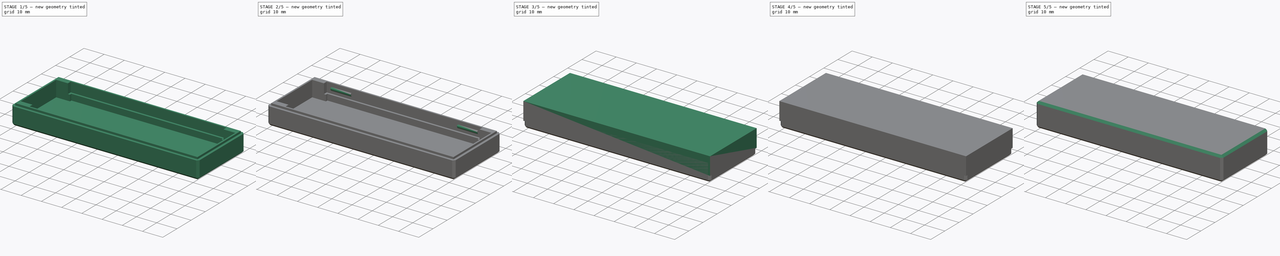
[diagram: build sequence overview — one tinted view per stage of 5, left to right]
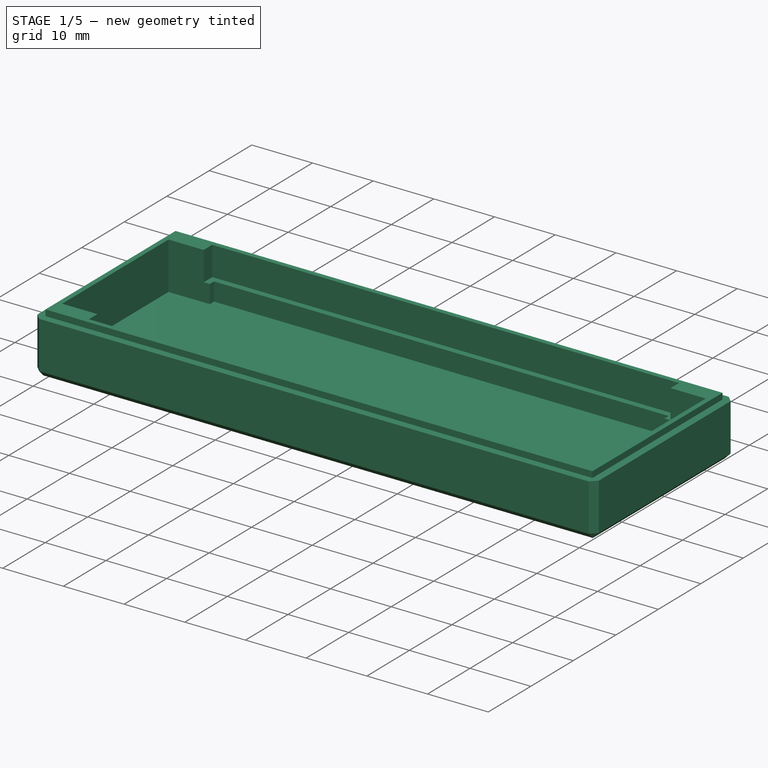
[diagram: stage 1 of 5 — iso view after this stage's code; geometry added in this stage tinted green]
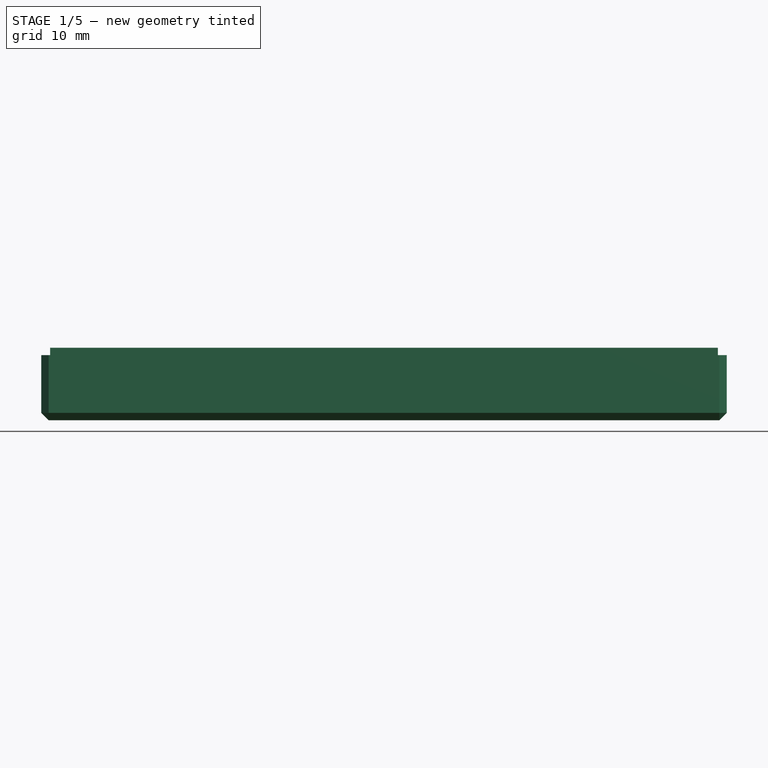
[diagram: stage 1 of 5 — front view after this stage's code; geometry added in this stage tinted green]
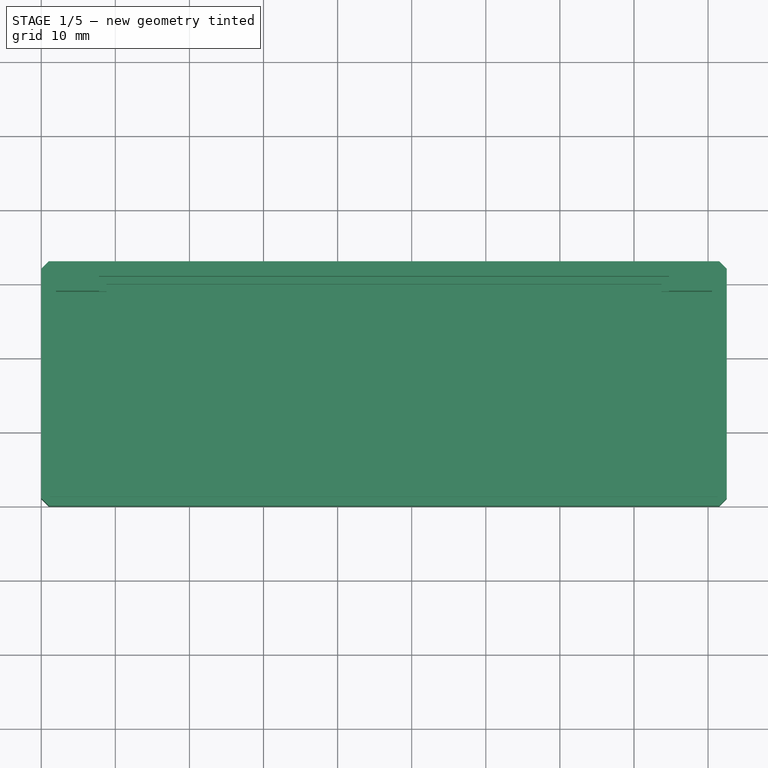
[diagram: stage 1 of 5 — top view after this stage's code; geometry added in this stage tinted green]
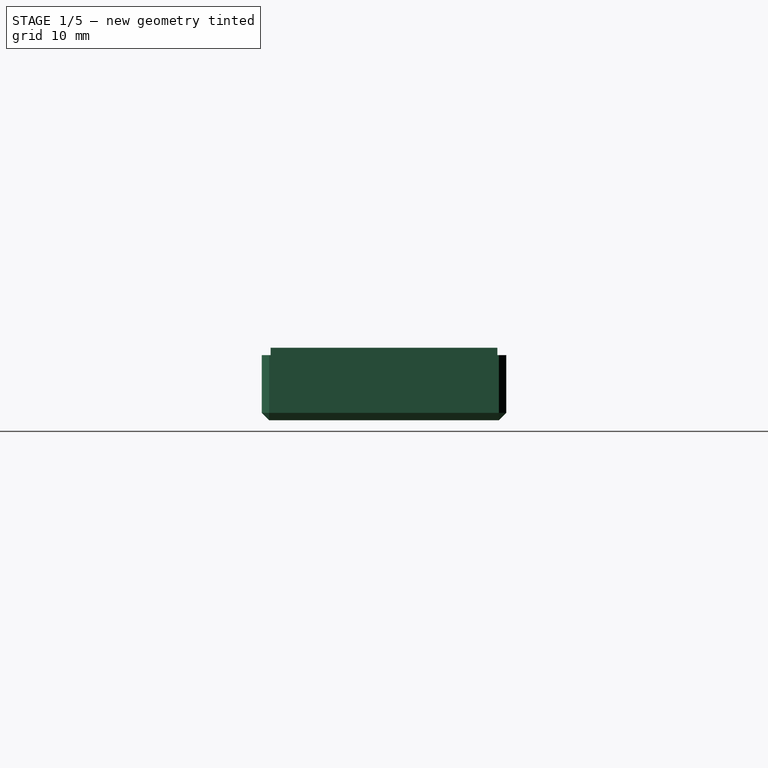
[diagram: stage 1 of 5 — right view after this stage's code; geometry added in this stage tinted green]
FCSTD DOCUMENT  (FreeCAD 0.21R33771 (Git))
Label: Mazda3_IC_MITM_3DPrintedCase
License: All rights reserved
LicenseURL: https://en.wikipedia.org/wiki/All_rights_reserved
objects: Sketcher::SketchObject×16, PartDesign::Pocket×11, PartDesign::Chamfer×8, PartDesign::Pad×4, PartDesign::Body×2, App::Part×1
note: 64 computed .brp shape members not serialized (recipe doc carries the construction recipe); baked Part::Feature solids carry a one-line shape summary decoded from their .brp

FEATURE [Sketcher::SketchObject] Sketch
  FullyConstrained = true
  MapMode = 5
  Support = -> [XY_Plane001]
  sketch-geometry (14):
    g0: LineSegment StartX=0 StartY=0 StartZ=0 EndX=92.52 EndY=0 EndZ=0
    g1: LineSegment StartX=92.52 StartY=0 StartZ=0 EndX=92.52 EndY=33 EndZ=0
    g2: LineSegment StartX=92.52 StartY=33 StartZ=0 EndX=0 EndY=33 EndZ=0
    g3: LineSegment StartX=0 StartY=33 StartZ=0 EndX=0 EndY=0 EndZ=0
    g4: LineSegment StartX=8 StartY=30.8 StartZ=0 EndX=84.52 EndY=30.8 EndZ=0
    g5: LineSegment StartX=84.52 StartY=30.8 StartZ=0 EndX=84.52 EndY=2.2 EndZ=0
    g6: LineSegment StartX=84.52 StartY=2.2 StartZ=0 EndX=8 EndY=2.2 EndZ=0
    g7: LineSegment StartX=8 StartY=2.2 StartZ=0 EndX=8 EndY=30.8 EndZ=0
    g8: LineSegment StartX=0 StartY=2 StartZ=0 EndX=92.52 EndY=2 EndZ=0
    g9: GeomPoint X=0 Y=16.5 Z=0
    g10: LineSegment StartX=0 StartY=31 StartZ=0 EndX=92.52 EndY=31 EndZ=0
    g11: GeomPoint X=46.26 Y=33 Z=0
    g12: LineSegment StartX=2 StartY=33 StartZ=0 EndX=2 EndY=0 EndZ=0
    g13: LineSegment StartX=90.52 StartY=0 StartZ=0 EndX=90.52 EndY=33 EndZ=0
  constraints (39):
    c: Coincident(g0,g1)
    c: Coincident(g1,g2)
    c: Coincident(g2,g3)
    c: Coincident(g3,g0)
    c: Horizontal(g0)
    c: Horizontal(g2)
    c: Vertical(g1)
    c: Vertical(g3)
    c: Coincident(g0,g-1)
    c: Coincident(g4,g5)
    c: Coincident(g5,g6)
    c: Coincident(g6,g7)
    c: Coincident(g7,g4)
    c: Horizontal(g4)
    c: Horizontal(g6)
    c: Vertical(g5)
    c: Vertical(g7)
    c: DistanceY(g7,g7) = 28.6
    c: DistanceX(g4,g4) = 76.52
    c: PointOnObject(g8,g3)
    c: PointOnObject(g8,g1)
    c: Horizontal(g8)
    c: PointOnObject(g10,g1)
    c: Horizontal(g10)
    c: Symmetric(g0,g2,g9)
    c: Symmetric(g10,g8,g9)
    c: Symmetric(g2,g1,g11)
    c: PointOnObject(g12,g2)
    c: PointOnObject(g12,g0)
    c: Vertical(g12)
    c: PointOnObject(g13,g0)
    c: Vertical(g13)
    c: Symmetric(g12,g13,g11)
    c: DistanceX(g0,g12) = 2
    c: DistanceY(g0,g8) = 2
    c: DistanceY(g4,g10) = 0.2
    c: DistanceY(g8,g5) = 0.2
    c: DistanceX(g12,g6) = 6
    c: DistanceX(g5,g13) = 6
FEATURE [Sketcher::SketchObject] Sketch001
  FullyConstrained = false
  MapMode = 5
  Placement = pos=(0,0,0) rot=(1,0,0;1.5708rad)
  Support = -> [XZ_Plane]
  sketch-geometry (56):
    g0: LineSegment StartX=0 StartY=8.8 StartZ=0 EndX=0 EndY=0 EndZ=0
    g1: LineSegment StartX=0 StartY=8.8 StartZ=0 EndX=1.2 EndY=8.8 EndZ=0
    g2: LineSegment StartX=1.2 StartY=8.8 StartZ=0 EndX=1.2 EndY=9.8 EndZ=0
    g3: LineSegment StartX=1.2 StartY=9.8 StartZ=0 EndX=2 EndY=9.8 EndZ=0
    g4: LineSegment StartX=2 StartY=9.8 StartZ=0 EndX=2 EndY=5 EndZ=0
    g5: LineSegment StartX=0 StartY=0 StartZ=0 EndX=33 EndY=0 EndZ=0
    g6: LineSegment StartX=33 StartY=0 StartZ=0 EndX=33 EndY=8.8 EndZ=0
    g7: LineSegment StartX=2.2 StartY=6 StartZ=0 EndX=30.8 EndY=6 EndZ=0
    g8: LineSegment StartX=30.8 StartY=6 StartZ=0 EndX=30.8 EndY=5 EndZ=0
    g9: LineSegment StartX=30.8 StartY=5 StartZ=0 EndX=2.2 EndY=5 EndZ=0
    g10: LineSegment StartX=2.2 StartY=5 StartZ=0 EndX=2.2 EndY=6 EndZ=0
    g11: LineSegment StartX=2 StartY=5 StartZ=0 EndX=3 EndY=5 EndZ=0
    g12: LineSegment StartX=3 StartY=5 StartZ=0 EndX=3 EndY=2 EndZ=0
    g13: LineSegment StartX=3 StartY=2 StartZ=0 EndX=30 EndY=2 EndZ=0
    g14: LineSegment StartX=30 StartY=2 StartZ=0 EndX=30 EndY=5 EndZ=0
    g15: LineSegment StartX=30 StartY=5 StartZ=0 EndX=31 EndY=5 EndZ=0
    g16: LineSegment StartX=31 StartY=5 StartZ=0 EndX=31 EndY=9.8 EndZ=0
    g17: LineSegment StartX=31 StartY=9.8 StartZ=0 EndX=31.8 EndY=9.8 EndZ=0
    g18: LineSegment StartX=31.8 StartY=9.8 StartZ=0 EndX=31.8 EndY=8.8 EndZ=0
    g19: GeomPoint X=16.5 Y=0 Z=0
    g20: LineSegment StartX=31.8 StartY=8.8 StartZ=0 EndX=33 EndY=8.8 EndZ=0
    g21: LineSegment StartX=2.2 StartY=6.1 StartZ=0 EndX=2.2 EndY=10 EndZ=0
    g22: LineSegment StartX=2.2 StartY=6.1 StartZ=0 EndX=3 EndY=6.1 EndZ=0
    g23: LineSegment StartX=3 StartY=6.1 StartZ=0 EndX=3 EndY=16.1 EndZ=0
    g24: LineSegment StartX=3 StartY=16.1 StartZ=0 EndX=30 EndY=16.1 EndZ=0
    g25: LineSegment StartX=30 StartY=16.1 StartZ=0 EndX=30 EndY=6.1 EndZ=0
    g26: LineSegment StartX=30 StartY=6.1 StartZ=0 EndX=30.8 EndY=6.1 EndZ=0
    g27: LineSegment StartX=30.8 StartY=6.1 StartZ=0 EndX=30.8 EndY=10 EndZ=0
    g28: LineSegment StartX=30.8 StartY=10 StartZ=0 EndX=32 EndY=10 EndZ=0
    g29: LineSegment StartX=32 StartY=10 StartZ=0 EndX=32 EndY=9.3 EndZ=0
    g30: LineSegment StartX=32 StartY=9.3 StartZ=0 EndX=33 EndY=9.3 EndZ=0
    g31: LineSegment StartX=33 StartY=9.3 StartZ=0 EndX=33 EndY=18.1 EndZ=0
    g32: LineSegment StartX=33 StartY=18.1 StartZ=0 EndX=0 EndY=18.1 EndZ=0
    g33: LineSegment StartX=0 StartY=18.1 StartZ=0 EndX=0 EndY=9.3 EndZ=0
    g34: LineSegment StartX=0 StartY=9.3 StartZ=0 EndX=1 EndY=9.3 EndZ=0
    g35: LineSegment StartX=1 StartY=9.3 StartZ=0 EndX=1 EndY=10 EndZ=0
    g36: LineSegment StartX=1 StartY=10 StartZ=0 EndX=2.2 EndY=10 EndZ=0
    g37: LineSegment StartX=0 StartY=8.8 StartZ=0 EndX=0 EndY=9.3 EndZ=0
    g38: LineSegment StartX=33 StartY=8.8 StartZ=0 EndX=33 EndY=9.3 EndZ=0
    g39: LineSegment StartX=3 StartY=5 StartZ=0 EndX=3 EndY=6.1 EndZ=0
    g40: LineSegment StartX=2 StartY=8.31291 StartZ=0 EndX=2.6 EndY=7.71291 EndZ=0
    g41: LineSegment StartX=2.6 StartY=7.71291 StartZ=0 EndX=2.6 EndY=7.11291 EndZ=0
    g42: LineSegment StartX=2.6 StartY=7.11291 StartZ=0 EndX=2 EndY=6.51291 EndZ=0
    g43: LineSegment StartX=2.2 StartY=9.99817 StartZ=0 EndX=2.65 EndY=9.54817 EndZ=0
    g44: LineSegment StartX=2.65 StartY=9.54817 StartZ=0 EndX=2.65 EndY=7.0922 EndZ=0
    g45: LineSegment StartX=2.65 StartY=7.0922 StartZ=0 EndX=2.2 EndY=6.6422 EndZ=0
    g46: LineSegment StartX=2 StartY=8.31291 StartZ=0 EndX=2 EndY=9.8 EndZ=0
    g47: LineSegment StartX=2 StartY=6.51291 StartZ=0 EndX=2 EndY=5 EndZ=0
    g48: LineSegment StartX=2 StartY=8.31291 StartZ=0 EndX=2 EndY=7.71291 EndZ=0
    g49: LineSegment StartX=2 StartY=7.71291 StartZ=0 EndX=2.6 EndY=7.71291 EndZ=0
    g50: LineSegment StartX=2.6 StartY=7.11291 StartZ=0 EndX=2 EndY=7.11291 EndZ=0
    g51: LineSegment StartX=2 StartY=7.11291 StartZ=0 EndX=2 EndY=6.51291 EndZ=0
    g52: LineSegment StartX=2.2 StartY=9.99817 StartZ=0 EndX=2.65 EndY=9.99817 EndZ=0
    g53: LineSegment StartX=2.65 StartY=9.99817 StartZ=0 EndX=2.65 EndY=9.54817 EndZ=0
    g54: LineSegment StartX=2.2 StartY=6.6422 StartZ=0 EndX=2.65 EndY=6.6422 EndZ=0
    g55: LineSegment StartX=2.65 StartY=6.6422 StartZ=0 EndX=2.65 EndY=7.0922 EndZ=0
  constraints (156):
    c: Vertical(g0)
    c: Coincident(g1,g0)
    c: Horizontal(g1)
    c: Coincident(g2,g1)
    c: Vertical(g2)
    c: Coincident(g3,g2)
    c: Horizontal(g3)
    c: Coincident(g4,g3)
    c: Vertical(g4)
    c: Coincident(g5,g0)
    c: Horizontal(g5)
    c: Coincident(g6,g5)
    c: Vertical(g6)
    c: Coincident(g7,g8)
    c: Coincident(g8,g9)
    c: Coincident(g9,g10)
    c: Coincident(g10,g7)
    c: Horizontal(g7)
    c: Horizontal(g9)
    c: Vertical(g8)
    c: Vertical(g10)
    c: Coincident(g11,g4)
    c: Horizontal(g11)
    c: Coincident(g12,g11)
    c: Vertical(g12)
    c: Coincident(g13,g12)
    c: Horizontal(g13)
    c: Coincident(g14,g13)
    c: Coincident(g15,g14)
    c: Horizontal(g15)
    c: Coincident(g16,g15)
    c: Vertical(g16)
    c: Coincident(g17,g16)
    c: Horizontal(g17)
    c: Coincident(g18,g17)
    c: Vertical(g18)
    c: Vertical(g14)
    c: Symmetric(g0,g5,g19)
    c: DistanceX(g7,g7) = 28.6
    c: DistanceY(g10,g10) = 1
    c: DistanceX(g4,g9) = 0.2
    c: DistanceX(g11,g11) = 1
    c: Equal(g12,g14)
    c: Equal(g15,g11)
    c: DistanceX(g0,g3) = 2
    c: DistanceX(g3,g3) = 0.8
    c: Equal(g3,g17)
    c: Equal(g18,g2)
    c: DistanceY(g2,g2) = 1
    c: Coincident(g20,g18)
    c: Coincident(g20,g6)
    c: Horizontal(g20)
    c: Equal(g1,g20)
    c: DistanceY(g5,g13) = 2
    c: DistanceY(g14,g14) = 3
    c: DistanceX(g8,g15) = 0.2
    c: PointOnObject(g8,g15)
    c: Equal(g16,g4)
    c: Vertical(g21)
    c: Coincident(g22,g21)
    c: Horizontal(g22)
    c: Coincident(g23,g22)
    c: Vertical(g23)
    c: Coincident(g24,g23)
    c: Horizontal(g24)
    c: Coincident(g25,g24)
    c: Vertical(g25)
    c: Coincident(g26,g25)
    c: Horizontal(g26)
    c: Coincident(g27,g26)
    c: Vertical(g27)
    c: Coincident(g28,g27)
    c: Horizontal(g28)
    c: Coincident(g29,g28)
    c: Vertical(g29)
    c: Coincident(g30,g29)
    c: Horizontal(g30)
    c: Coincident(g31,g30)
    c: Vertical(g31)
    c: Coincident(g32,g31)
    c: Horizontal(g32)
    c: Coincident(g33,g32)
    c: Vertical(g33)
    c: Coincident(g34,g33)
    c: Horizontal(g34)
    c: Coincident(g35,g34)
    c: Vertical(g35)
    c: Coincident(g36,g35)
    c: Horizontal(g36)
    c: Coincident(g21,g36)
    c: Equal(g22,g26)
    c: Equal(g23,g25)
    c: Equal(g27,g21)
    c: Equal(g36,g28)
    c: Equal(g29,g35)
    c: Equal(g34,g30)
    c: Coincident(g37,g0)
    c: Coincident(g37,g33)
    c: Vertical(g37)
    c: Coincident(g38,g6)
    c: Coincident(g38,g30)
    c: Vertical(g38)
    c: DistanceY(g37,g37) = 0.5
    c: DistanceY(g2,g35) = 0.2
    c: DistanceX(g35,g2) = 0.2
    c: DistanceX(g3,g21) = 0.2
    c: DistanceY(g23,g23) = 10
    c: DistanceY(g23,g32) = 2
    c: DistanceY(g7,g22) = 0.1
    c: Coincident(g39,g11)
    c: Coincident(g39,g22)
    c: Vertical(g39)
    c: Equal(g0,g33)
    c: Coincident(g-1,g0)
    c: Coincident(g41,g40)
    c: Vertical(g41)
    c: Coincident(g42,g41)
    c: Coincident(g44,g43)
    c: Vertical(g44)
    c: Coincident(g45,g44)
    c: Coincident(g46,g40)
    c: Coincident(g46,g3)
    c: Coincident(g47,g42)
    c: Coincident(g47,g11)
    c: Equal(g42,g40)
    c: Coincident(g48,g40)
    c: Vertical(g48)
    c: Coincident(g49,g48)
    c: Coincident(g49,g40)
    c: Coincident(g50,g41)
    c: Horizontal(g50)
    c: Coincident(g51,g50)
    c: Coincident(g51,g42)
    c: Vertical(g51)
    c: Horizontal(g49)
    c: Equal(g49,g48)
    c: Equal(g50,g51)
    c: Vertical(g47)
    c: Coincident(g52,g43)
    c: Horizontal(g52)
    c: Coincident(g53,g52)
    c: Coincident(g53,g43)
    c: Coincident(g54,g45)
    c: Horizontal(g54)
    c: Coincident(g55,g54)
    c: Coincident(g55,g44)
    c: Vertical(g55)
    c: Equal(g55,g54)
    c: Equal(g55,g53)
    c: Equal(g53,g52)
    c: Vertical(g53)
    c: PointOnObject(g43,g21)
    c: DistanceX(g21,g40) = 0.4
    c: DistanceY(g41,g41) = 0.6
    c: DistanceX(g40,g43) = 0.05
    c: Distance(g41,g45) = 0.05
FEATURE [PartDesign::Pad] Pad
  Direction = (0,0,1)
  Length = 9.8
  Length2 = 10
  Profile = -> Sketch
  ReferenceAxis = -> Sketch [N_Axis]
  Type = 0
FEATURE [Sketcher::SketchObject] Sketch002
  FullyConstrained = true
  MapMode = 5
  Placement = pos=(0,0,9.8) rot=(0,0,1;0rad)
  Support = -> [Pad]
  expr: Constraints[17] = Sketch.Constraints[17]
  expr: Constraints[18] = Sketch.Constraints[18]
  expr: Constraints[33] = Sketch.Constraints[33]
  expr: Constraints[34] = Sketch.Constraints[34]
  expr: Constraints[35] = Sketch.Constraints[35]
  expr: Constraints[36] = Sketch.Constraints[36]
  expr: Constraints[37] = Sketch.Constraints[37]
  expr: Constraints[38] = Sketch.Constraints[38]
  sketch-geometry (26):
    g0: LineSegment StartX=0 StartY=0 StartZ=0 EndX=92.52 EndY=0 EndZ=0
    g1: LineSegment StartX=92.52 StartY=0 StartZ=0 EndX=92.52 EndY=33 EndZ=0
    g2: LineSegment StartX=92.52 StartY=33 StartZ=0 EndX=0 EndY=33 EndZ=0
    g3: LineSegment StartX=0 StartY=33 StartZ=0 EndX=0 EndY=0 EndZ=0
    g4: LineSegment StartX=8 StartY=30.8 StartZ=0 EndX=84.52 EndY=30.8 EndZ=0
    g5: LineSegment StartX=84.52 StartY=30.8 StartZ=0 EndX=84.52 EndY=2.2 EndZ=0
    g6: LineSegment StartX=84.52 StartY=2.2 StartZ=0 EndX=8 EndY=2.2 EndZ=0
    g7: LineSegment StartX=8 StartY=2.2 StartZ=0 EndX=8 EndY=30.8 EndZ=0
    g8: LineSegment StartX=0 StartY=2 StartZ=0 EndX=92.52 EndY=2 EndZ=0
    g9: GeomPoint X=0 Y=16.5 Z=0
    g10: LineSegment StartX=0 StartY=31 StartZ=0 EndX=92.52 EndY=31 EndZ=0
    g11: GeomPoint X=46.26 Y=33 Z=0
    g12: LineSegment StartX=2 StartY=33 StartZ=0 EndX=2 EndY=0 EndZ=0
    g13: LineSegment StartX=90.52 StartY=0 StartZ=0 EndX=90.52 EndY=33 EndZ=0
    g14: LineSegment StartX=2 StartY=29 StartZ=0 EndX=2 EndY=4 EndZ=0
    g15: LineSegment StartX=2 StartY=29 StartZ=0 EndX=7.8 EndY=29 EndZ=0
    g16: LineSegment StartX=7.8 StartY=29 StartZ=0 EndX=7.8 EndY=31 EndZ=0
    g17: LineSegment StartX=7.8 StartY=31 StartZ=0 EndX=84.72 EndY=31 EndZ=0
    g18: LineSegment StartX=84.72 StartY=31 StartZ=0 EndX=84.72 EndY=29 EndZ=0
    g19: LineSegment StartX=84.72 StartY=29 StartZ=0 EndX=90.52 EndY=29 EndZ=0
    g20: LineSegment StartX=90.52 StartY=29 StartZ=0 EndX=90.52 EndY=4 EndZ=0
    g21: LineSegment StartX=90.52 StartY=4 StartZ=0 EndX=84.72 EndY=4 EndZ=0
    g22: LineSegment StartX=84.72 StartY=4 StartZ=0 EndX=84.72 EndY=2 EndZ=0
    g23: LineSegment StartX=84.72 StartY=2 StartZ=0 EndX=7.8 EndY=2 EndZ=0
    g24: LineSegment StartX=7.8 StartY=2 StartZ=0 EndX=7.8 EndY=4 EndZ=0
    g25: LineSegment StartX=7.8 StartY=4 StartZ=0 EndX=2 EndY=4 EndZ=0
  constraints (75):
    c: Coincident(g0,g1)
    c: Coincident(g1,g2)
    c: Coincident(g2,g3)
    c: Coincident(g3,g0)
    c: Horizontal(g0)
    c: Horizontal(g2)
    c: Vertical(g1)
    c: Vertical(g3)
    c: Coincident(g0,g-1)
    c: Coincident(g4,g5)
    c: Coincident(g5,g6)
    c: Coincident(g6,g7)
    c: Coincident(g7,g4)
    c: Horizontal(g4)
    c: Horizontal(g6)
    c: Vertical(g5)
    c: Vertical(g7)
    c: DistanceY(g7,g7) = 28.6
    c: DistanceX(g4,g4) = 76.52
    c: PointOnObject(g8,g3)
    c: PointOnObject(g8,g1)
    c: Horizontal(g8)
    c: PointOnObject(g10,g1)
    c: Horizontal(g10)
    c: Symmetric(g0,g2,g9)
    c: Symmetric(g10,g8,g9)
    c: Symmetric(g2,g1,g11)
    c: PointOnObject(g12,g2)
    c: PointOnObject(g12,g0)
    c: Vertical(g12)
    c: PointOnObject(g13,g0)
    c: Vertical(g13)
    c: Symmetric(g12,g13,g11)
    c: DistanceX(g0,g12) = 2
    c: DistanceY(g0,g8) = 2
    c: DistanceY(g4,g10) = 0.2
    c: DistanceY(g8,g5) = 0.2
    c: DistanceX(g12,g6) = 6
    c: DistanceX(g5,g13) = 6
    c: Vertical(g14)
    c: Coincident(g15,g14)
    c: Horizontal(g15)
    c: Coincident(g16,g15)
    c: PointOnObject(g16,g10)
    c: Vertical(g16)
    c: Coincident(g17,g16)
    c: Horizontal(g17)
    c: Coincident(g18,g17)
    c: Vertical(g18)
    c: Coincident(g19,g18)
    c: PointOnObject(g19,g13)
    c: Horizontal(g19)
    c: Coincident(g20,g19)
    c: Vertical(g20)
    c: Coincident(g21,g20)
    c: Horizontal(g21)
    c: Coincident(g22,g21)
    c: PointOnObject(g22,g8)
    c: Vertical(g22)
    c: Coincident(g23,g22)
    c: Horizontal(g23)
    c: Coincident(g24,g23)
    c: Vertical(g24)
    c: Coincident(g25,g24)
    c: Coincident(g25,g14)
    c: Horizontal(g25)
    c: PointOnObject(g14,g12)
    c: DistanceX(g15,g4) = 0.2
    c: Equal(g16,g24)
    c: Equal(g24,g22)
    c: Equal(g22,g18)
    c: Equal(g21,g19)
    c: Equal(g19,g15)
    c: Equal(g15,g25)
    c: DistanceY(g24,g24) = 2
FEATURE [PartDesign::Pocket] Pocket
  BaseFeature = -> Pad
  Direction = (0,0,-1)
  Length = 4.8
  Length2 = 5
  Profile = -> Sketch002
  ReferenceAxis = -> Sketch002 [N_Axis]
  Type = 0
FEATURE [Sketcher::SketchObject] Sketch003
  FullyConstrained = true
  MapMode = 5
  Placement = pos=(0,0,9.8) rot=(0,0,1;0rad)
  Support = -> [Pocket]
  expr: Constraints[17] = Sketch002.Constraints[17]
  expr: Constraints[18] = Sketch002.Constraints[18]
  expr: Constraints[33] = Sketch002.Constraints[33]
  expr: Constraints[34] = Sketch002.Constraints[34]
  expr: Constraints[35] = Sketch002.Constraints[35]
  expr: Constraints[36] = Sketch002.Constraints[36]
  expr: Constraints[37] = Sketch002.Constraints[37]
  expr: Constraints[38] = Sketch002.Constraints[38]
  expr: Constraints[67] = Sketch002.Constraints[67]
  expr: Constraints[74] = Sketch002.Constraints[74]
  sketch-geometry (34):
    g0: LineSegment StartX=0 StartY=0 StartZ=0 EndX=92.52 EndY=0 EndZ=0
    g1: LineSegment StartX=92.52 StartY=0 StartZ=0 EndX=92.52 EndY=33 EndZ=0
    g2: LineSegment StartX=92.52 StartY=33 StartZ=0 EndX=0 EndY=33 EndZ=0
    g3: LineSegment StartX=0 StartY=33 StartZ=0 EndX=0 EndY=0 EndZ=0
    g4: LineSegment StartX=8 StartY=30.8 StartZ=0 EndX=84.52 EndY=30.8 EndZ=0
    g5: LineSegment StartX=84.52 StartY=30.8 StartZ=0 EndX=84.52 EndY=2.2 EndZ=0
    g6: LineSegment StartX=84.52 StartY=2.2 StartZ=0 EndX=8 EndY=2.2 EndZ=0
    g7: LineSegment StartX=8 StartY=2.2 StartZ=0 EndX=8 EndY=30.8 EndZ=0
    g8: LineSegment StartX=0 StartY=2 StartZ=0 EndX=92.52 EndY=2 EndZ=0
    g9: GeomPoint X=0 Y=16.5 Z=0
    g10: LineSegment StartX=0 StartY=31 StartZ=0 EndX=92.52 EndY=31 EndZ=0
    g11: GeomPoint X=46.26 Y=33 Z=0
    g12: LineSegment StartX=2 StartY=33 StartZ=0 EndX=2 EndY=0 EndZ=0
    g13: LineSegment StartX=90.52 StartY=0 StartZ=0 EndX=90.52 EndY=33 EndZ=0
    g14: LineSegment StartX=2 StartY=29 StartZ=0 EndX=2 EndY=4 EndZ=0
    g15: LineSegment StartX=2 StartY=29 StartZ=0 EndX=7.8 EndY=29 EndZ=0
    g16: LineSegment StartX=7.8 StartY=29 StartZ=0 EndX=7.8 EndY=31 EndZ=0
    g17: LineSegment StartX=7.8 StartY=31 StartZ=0 EndX=84.72 EndY=31 EndZ=0
    g18: LineSegment StartX=84.72 StartY=31 StartZ=0 EndX=84.72 EndY=29 EndZ=0
    g19: LineSegment StartX=84.72 StartY=29 StartZ=0 EndX=90.52 EndY=29 EndZ=0
    g20: LineSegment StartX=90.52 StartY=29 StartZ=0 EndX=90.52 EndY=4 EndZ=0
    g21: LineSegment StartX=90.52 StartY=4 StartZ=0 EndX=84.72 EndY=4 EndZ=0
    g22: LineSegment StartX=84.72 StartY=4 StartZ=0 EndX=84.72 EndY=2 EndZ=0
    g23: LineSegment StartX=84.72 StartY=2 StartZ=0 EndX=7.8 EndY=2 EndZ=0
    g24: LineSegment StartX=7.8 StartY=2 StartZ=0 EndX=7.8 EndY=4 EndZ=0
    g25: LineSegment StartX=7.8 StartY=4 StartZ=0 EndX=2 EndY=4 EndZ=0
    g26: LineSegment StartX=1.2 StartY=31.8 StartZ=0 EndX=91.32 EndY=31.8 EndZ=0
    g27: LineSegment StartX=91.32 StartY=31.8 StartZ=0 EndX=91.32 EndY=1.2 EndZ=0
    g28: LineSegment StartX=91.32 StartY=1.2 StartZ=0 EndX=1.2 EndY=1.2 EndZ=0
    g29: LineSegment StartX=1.2 StartY=1.2 StartZ=0 EndX=1.2 EndY=31.8 EndZ=0
    g30: LineSegment StartX=92.82 StartY=-0.3 StartZ=0 EndX=-0.3 EndY=-0.3 EndZ=0
    g31: LineSegment StartX=-0.3 StartY=-0.3 StartZ=0 EndX=-0.3 EndY=33.3 EndZ=0
    g32: LineSegment StartX=-0.3 StartY=33.3 StartZ=0 EndX=92.82 EndY=33.3 EndZ=0
    g33: LineSegment StartX=92.82 StartY=33.3 StartZ=0 EndX=92.82 EndY=-0.3 EndZ=0
  constraints (99):
    c: Coincident(g0,g1)
    c: Coincident(g1,g2)
    c: Coincident(g2,g3)
    c: Coincident(g3,g0)
    c: Horizontal(g0)
    c: Horizontal(g2)
    c: Vertical(g1)
    c: Vertical(g3)
    c: Coincident(g0,g-1)
    c: Coincident(g4,g5)
    c: Coincident(g5,g6)
    c: Coincident(g6,g7)
    c: Coincident(g7,g4)
    c: Horizontal(g4)
    c: Horizontal(g6)
    c: Vertical(g5)
    c: Vertical(g7)
    c: DistanceY(g7,g7) = 28.6
    c: DistanceX(g4,g4) = 76.52
    c: PointOnObject(g8,g3)
    c: PointOnObject(g8,g1)
    c: Horizontal(g8)
    c: PointOnObject(g10,g1)
    c: Horizontal(g10)
    c: Symmetric(g0,g2,g9)
    c: Symmetric(g10,g8,g9)
    c: Symmetric(g2,g1,g11)
    c: PointOnObject(g12,g2)
    c: PointOnObject(g12,g0)
    c: Vertical(g12)
    c: PointOnObject(g13,g0)
    c: Vertical(g13)
    c: Symmetric(g12,g13,g11)
    c: DistanceX(g0,g12) = 2
    c: DistanceY(g0,g8) = 2
    c: DistanceY(g4,g10) = 0.2
    c: DistanceY(g8,g5) = 0.2
    c: DistanceX(g12,g6) = 6
    c: DistanceX(g5,g13) = 6
    c: Vertical(g14)
    c: Coincident(g15,g14)
    c: Horizontal(g15)
    c: Coincident(g16,g15)
    c: PointOnObject(g16,g10)
    c: Vertical(g16)
    c: Coincident(g17,g16)
    c: Horizontal(g17)
    c: Coincident(g18,g17)
    c: Vertical(g18)
    c: Coincident(g19,g18)
    c: PointOnObject(g19,g13)
    c: Horizontal(g19)
    c: Coincident(g20,g19)
    c: Vertical(g20)
    c: Coincident(g21,g20)
    c: Horizontal(g21)
    c: Coincident(g22,g21)
    c: PointOnObject(g22,g8)
    c: Vertical(g22)
    c: Coincident(g23,g22)
    c: Horizontal(g23)
    c: Coincident(g24,g23)
    c: Vertical(g24)
    c: Coincident(g25,g24)
    c: Coincident(g25,g14)
    c: Horizontal(g25)
    c: PointOnObject(g14,g12)
    c: DistanceX(g15,g4) = 0.2
    c: Equal(g16,g24)
    c: Equal(g24,g22)
    c: Equal(g22,g18)
    c: Equal(g21,g19)
    c: Equal(g19,g15)
    c: Equal(g15,g25)
    c: DistanceY(g24,g24) = 2
    c: Coincident(g26,g27)
    c: Coincident(g27,g28)
    c: Coincident(g28,g29)
    c: Coincident(g29,g26)
    c: Horizontal(g26)
    c: Horizontal(g28)
    c: Vertical(g27)
    c: Vertical(g29)
    c: Coincident(g30,g31)
    c: Coincident(g31,g32)
    c: Coincident(g32,g33)
    c: Coincident(g33,g30)
    c: Horizontal(g30)
    c: Horizontal(g32)
    c: Vertical(g31)
    c: Vertical(g33)
    c: DistanceX(g26,g12) = 0.8
    c: DistanceX(g13,g26) = 0.8
    c: DistanceY(g10,g26) = 0.8
    c: DistanceY(g27,g8) = 0.8
    c: DistanceX(g26,g32) = 1.5
    c: DistanceY(g26,g32) = 1.5
    c: DistanceY(g30,g27) = 1.5
    c: DistanceX(g30,g28) = 1.5
FEATURE [PartDesign::Pocket] Pocket001
  BaseFeature = -> Pocket
  Direction = (0,0,-1)
  Length = 1
  Length2 = 5
  Profile = -> Sketch003
  ReferenceAxis = -> Sketch003 [N_Axis]
  Type = 0
FEATURE [Sketcher::SketchObject] Sketch004
  FullyConstrained = false
  MapMode = 5
  Placement = pos=(0,0,5) rot=(0,0,1;0rad)
  Support = -> [Pocket001]
  expr: Constraints[17] = Sketch002.Constraints[17]
  expr: Constraints[18] = Sketch002.Constraints[18]
  expr: Constraints[33] = Sketch002.Constraints[33]
  expr: Constraints[34] = Sketch002.Constraints[34]
  expr: Constraints[35] = Sketch002.Constraints[35]
  expr: Constraints[36] = Sketch002.Constraints[36]
  expr: Constraints[37] = Sketch002.Constraints[37]
  expr: Constraints[38] = Sketch002.Constraints[38]
  expr: Constraints[67] = Sketch002.Constraints[67]
  expr: Constraints[74] = Sketch002.Constraints[74]
  sketch-geometry (40):
    g0: LineSegment StartX=0 StartY=0 StartZ=0 EndX=92.52 EndY=0 EndZ=0
    g1: LineSegment StartX=92.52 StartY=0 StartZ=0 EndX=92.52 EndY=33 EndZ=0
    g2: LineSegment StartX=92.52 StartY=33 StartZ=0 EndX=0 EndY=33 EndZ=0
    g3: LineSegment StartX=0 StartY=33 StartZ=0 EndX=0 EndY=0 EndZ=0
    g4: LineSegment StartX=8 StartY=30.8 StartZ=0 EndX=84.52 EndY=30.8 EndZ=0
    g5: LineSegment StartX=84.52 StartY=30.8 StartZ=0 EndX=84.52 EndY=2.2 EndZ=0
    g6: LineSegment StartX=84.52 StartY=2.2 StartZ=0 EndX=8 EndY=2.2 EndZ=0
    g7: LineSegment StartX=8 StartY=2.2 StartZ=0 EndX=8 EndY=30.8 EndZ=0
    g8: LineSegment StartX=0 StartY=2 StartZ=0 EndX=92.52 EndY=2 EndZ=0
    g9: GeomPoint X=0 Y=16.5 Z=0
    g10: LineSegment StartX=0 StartY=31 StartZ=0 EndX=92.52 EndY=31 EndZ=0
    g11: GeomPoint X=46.26 Y=33 Z=0
    g12: LineSegment StartX=2 StartY=33 StartZ=0 EndX=2 EndY=0 EndZ=0
    g13: LineSegment StartX=90.52 StartY=0 StartZ=0 EndX=90.52 EndY=33 EndZ=0
    g14: LineSegment StartX=2 StartY=29 StartZ=0 EndX=2 EndY=4 EndZ=0
    g15: LineSegment StartX=2 StartY=29 StartZ=0 EndX=7.8 EndY=29 EndZ=0
    g16: LineSegment StartX=7.8 StartY=29 StartZ=0 EndX=7.8 EndY=31 EndZ=0
    g17: LineSegment StartX=7.8 StartY=31 StartZ=0 EndX=84.72 EndY=31 EndZ=0
    g18: LineSegment StartX=84.72 StartY=31 StartZ=0 EndX=84.72 EndY=29 EndZ=0
    g19: LineSegment StartX=84.72 StartY=29 StartZ=0 EndX=90.52 EndY=29 EndZ=0
    g20: LineSegment StartX=90.52 StartY=29 StartZ=0 EndX=90.52 EndY=4 EndZ=0
    g21: LineSegment StartX=90.52 StartY=4 StartZ=0 EndX=84.72 EndY=4 EndZ=0
    g22: LineSegment StartX=84.72 StartY=4 StartZ=0 EndX=84.72 EndY=2 EndZ=0
    g23: LineSegment StartX=84.72 StartY=2 StartZ=0 EndX=7.8 EndY=2 EndZ=0
    g24: LineSegment StartX=7.8 StartY=2 StartZ=0 EndX=7.8 EndY=4 EndZ=0
    g25: LineSegment StartX=7.8 StartY=4 StartZ=0 EndX=2 EndY=4 EndZ=0
    g26: LineSegment StartX=2 StartY=29 StartZ=0 EndX=2 EndY=4 EndZ=0
    g27: LineSegment StartX=2 StartY=4 StartZ=0 EndX=8.8 EndY=4 EndZ=0
    g28: LineSegment StartX=8 StartY=28.1164 StartZ=0 EndX=8 EndY=30.8 EndZ=0
    g29: LineSegment StartX=83.72 StartY=29 StartZ=0 EndX=90.52 EndY=29 EndZ=0
    g30: LineSegment StartX=90.52 StartY=29 StartZ=0 EndX=90.52 EndY=4 EndZ=0
    g31: LineSegment StartX=84.52 StartY=2.2 StartZ=0 EndX=84.52 EndY=5.32578 EndZ=0
    g32: LineSegment StartX=8.8 StartY=30 StartZ=0 EndX=83.72 EndY=30 EndZ=0
    g33: LineSegment StartX=83.72 StartY=30 StartZ=0 EndX=83.72 EndY=29 EndZ=0
    g34: LineSegment StartX=8.8 StartY=4 StartZ=0 EndX=8.8 EndY=3 EndZ=0
    g35: LineSegment StartX=8.8 StartY=3 StartZ=0 EndX=83.72 EndY=3 EndZ=0
    g36: LineSegment StartX=8.8 StartY=30 StartZ=0 EndX=8.8 EndY=29 EndZ=0
    g37: LineSegment StartX=2 StartY=29 StartZ=0 EndX=8.8 EndY=29 EndZ=0
    g38: LineSegment StartX=90.52 StartY=4 StartZ=0 EndX=83.72 EndY=4 EndZ=0
    g39: LineSegment StartX=83.72 StartY=3 StartZ=0 EndX=83.72 EndY=4 EndZ=0
  constraints (115):
    c: Coincident(g0,g1)
    c: Coincident(g1,g2)
    c: Coincident(g2,g3)
    c: Coincident(g3,g0)
    c: Horizontal(g0)
    c: Horizontal(g2)
    c: Vertical(g1)
    c: Vertical(g3)
    c: Coincident(g0,g-1)
    c: Coincident(g4,g5)
    c: Coincident(g5,g6)
    c: Coincident(g6,g7)
    c: Coincident(g7,g4)
    c: Horizontal(g4)
    c: Horizontal(g6)
    c: Vertical(g5)
    c: Vertical(g7)
    c: DistanceY(g7,g7) = 28.6
    c: DistanceX(g4,g4) = 76.52
    c: PointOnObject(g8,g3)
    c: PointOnObject(g8,g1)
    c: Horizontal(g8)
    c: PointOnObject(g10,g1)
    c: Horizontal(g10)
    c: Symmetric(g0,g2,g9)
    c: Symmetric(g10,g8,g9)
    c: Symmetric(g2,g1,g11)
    c: PointOnObject(g12,g2)
    c: PointOnObject(g12,g0)
    c: Vertical(g12)
    c: PointOnObject(g13,g0)
    c: Vertical(g13)
    c: Symmetric(g12,g13,g11)
    c: DistanceX(g0,g12) = 2
    c: DistanceY(g0,g8) = 2
    c: DistanceY(g4,g10) = 0.2
    c: DistanceY(g8,g5) = 0.2
    c: DistanceX(g12,g6) = 6
    c: DistanceX(g5,g13) = 6
    c: Vertical(g14)
    c: Coincident(g15,g14)
    c: Horizontal(g15)
    c: Coincident(g16,g15)
    c: PointOnObject(g16,g10)
    c: Vertical(g16)
    c: Coincident(g17,g16)
    c: Horizontal(g17)
    c: Coincident(g18,g17)
    c: Vertical(g18)
    c: Coincident(g19,g18)
    c: PointOnObject(g19,g13)
    c: Horizontal(g19)
    c: Coincident(g20,g19)
    c: Vertical(g20)
    c: Coincident(g21,g20)
    c: Horizontal(g21)
    c: Coincident(g22,g21)
    c: PointOnObject(g22,g8)
    c: Vertical(g22)
    c: Coincident(g23,g22)
    c: Horizontal(g23)
    c: Coincident(g24,g23)
    c: Vertical(g24)
    c: Coincident(g25,g24)
    c: Coincident(g25,g14)
    c: Horizontal(g25)
    c: PointOnObject(g14,g12)
    c: DistanceX(g15,g4) = 0.2
    c: Equal(g16,g24)
    c: Equal(g24,g22)
    c: Equal(g22,g18)
    c: Equal(g21,g19)
    c: Equal(g19,g15)
    c: Equal(g15,g25)
    c: DistanceY(g24,g24) = 2
    c: PointOnObject(g26,g12)
    c: Vertical(g26)
    c: Coincident(g27,g26)
    c: Horizontal(g27)
    c: Coincident(g28,g4)
    c: Vertical(g28)
    c: Horizontal(g29)
    c: Coincident(g30,g29)
    c: PointOnObject(g30,g13)
    c: Vertical(g30)
    c: Coincident(g31,g6)
    c: Vertical(g31)
    c: PointOnObject(g18,g29)
    c: Horizontal(g32)
    c: Coincident(g33,g32)
    c: Vertical(g33)
    c: Coincident(g29,g33)
    c: DistanceX(g29,g18) = 1
    c: DistanceY(g32,g17) = 1
    c: Coincident(g34,g27)
    c: Vertical(g34)
    c: Coincident(g35,g34)
    c: Horizontal(g35)
    c: Coincident(g36,g32)
    c: Vertical(g36)
    c: Coincident(g37,g26)
    c: Coincident(g37,g36)
    c: Horizontal(g37)
    c: DistanceX(g15,g36) = 1
    c: PointOnObject(g15,g37)
    c: PointOnObject(g24,g27)
    c: DistanceX(g24,g27) = 1
    c: DistanceY(g23,g34) = 1
    c: Coincident(g38,g30)
    c: Horizontal(g38)
    c: Coincident(g39,g35)
    c: Coincident(g39,g38)
    c: Vertical(g39)
    c: DistanceX(g38,g21) = 1
    c: PointOnObject(g21,g38)
FEATURE [PartDesign::Pocket] Pocket002
  BaseFeature = -> Pocket001
  Direction = (0,0,-1)
  Length = 3
  Length2 = 5
  Profile = -> Sketch004
  ReferenceAxis = -> Sketch004 [N_Axis]
  Type = 0
FEATURE [PartDesign::Chamfer] Chamfer002
  Angle = 45
  Base = -> Pocket002 [Edge1,Edge7,Edge4,Edge16,Edge6,Edge8,Edge5,Edge2]
  BaseFeature = -> Pocket002
  ChamferType = 0
  FlipDirection = false
  Size = 1
  Size2 = 1
  SupportTransform = false
  UseAllEdges = false
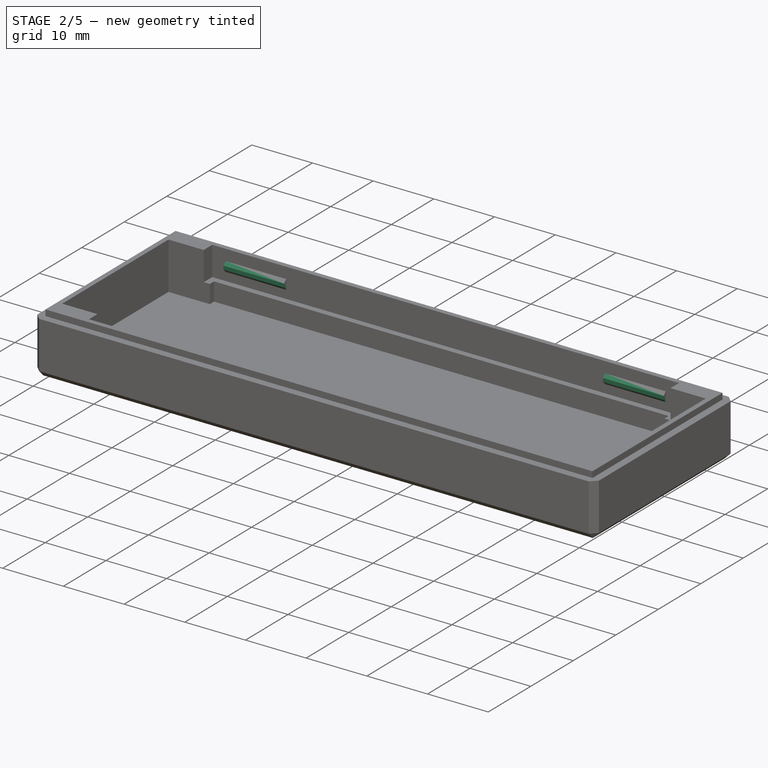
[diagram: stage 2 of 5 — iso view after this stage's code; geometry added in this stage tinted green]
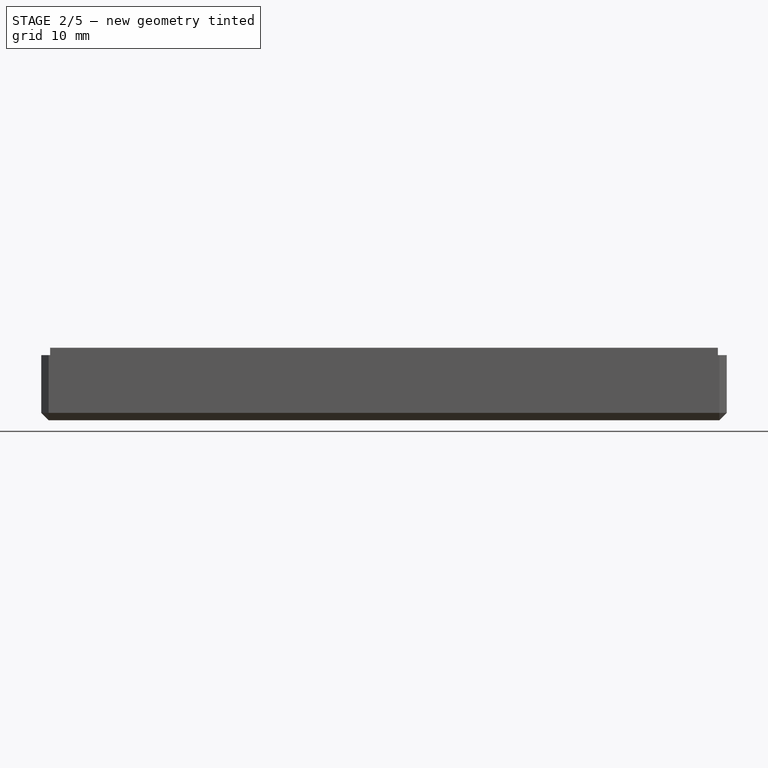
[diagram: stage 2 of 5 — front view after this stage's code; geometry added in this stage tinted green]
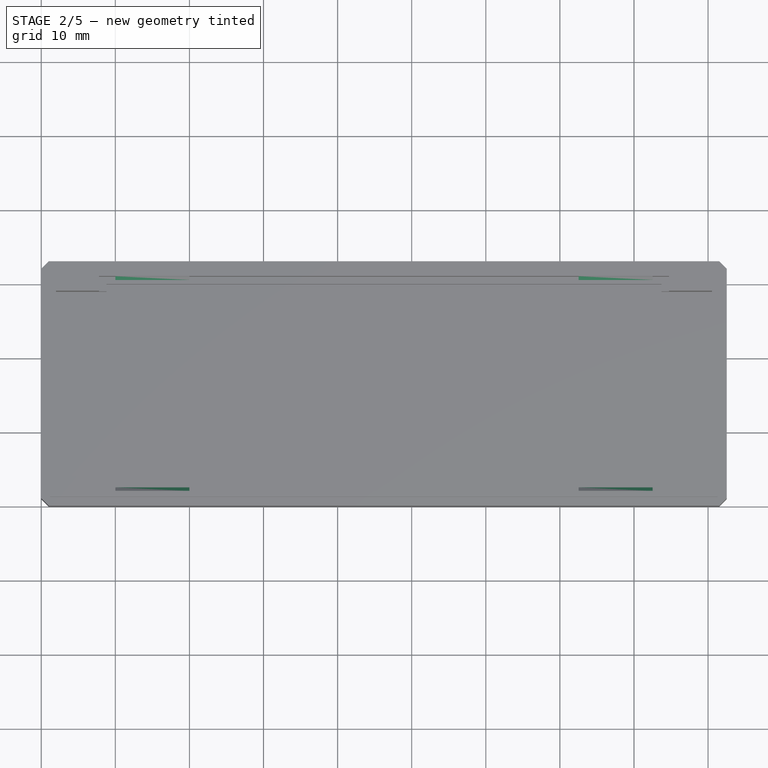
[diagram: stage 2 of 5 — top view after this stage's code; geometry added in this stage tinted green]
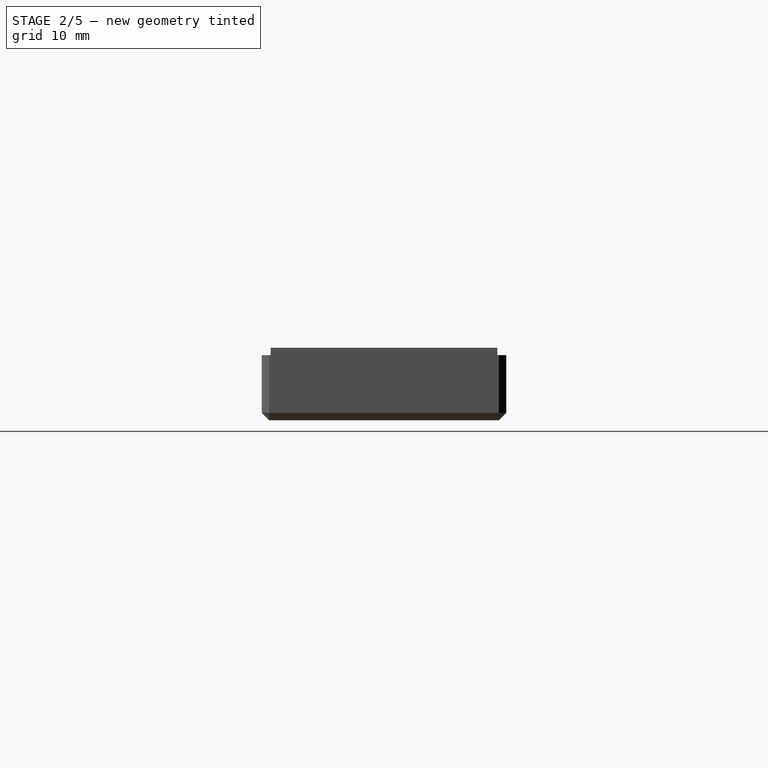
[diagram: stage 2 of 5 — right view after this stage's code; geometry added in this stage tinted green]
FEATURE [Sketcher::SketchObject] Sketch012
  FullyConstrained = true
  MapMode = 5
  Placement = pos=(0,31,0) rot=(1,0,0;1.5708rad)
  Support = -> [Chamfer002]
  expr: Constraints[16] = 6.1 + 0.27
  sketch-geometry (9):
    g0: LineSegment StartX=10 StartY=7.97 StartZ=0 EndX=20 EndY=7.97 EndZ=0
    g1: LineSegment StartX=20 StartY=7.97 StartZ=0 EndX=20 EndY=6.37 EndZ=0
    g2: LineSegment StartX=20 StartY=6.37 StartZ=0 EndX=10 EndY=6.37 EndZ=0
    g3: LineSegment StartX=10 StartY=6.37 StartZ=0 EndX=10 EndY=7.97 EndZ=0
    g4: LineSegment StartX=72.52 StartY=7.97 StartZ=0 EndX=82.52 EndY=7.97 EndZ=0
    g5: LineSegment StartX=82.52 StartY=7.97 StartZ=0 EndX=82.52 EndY=6.37 EndZ=0
    g6: LineSegment StartX=82.52 StartY=6.37 StartZ=0 EndX=72.52 EndY=6.37 EndZ=0
    g7: LineSegment StartX=72.52 StartY=6.37 StartZ=0 EndX=72.52 EndY=7.97 EndZ=0
    g8: LineSegment StartX=20 StartY=6.37 StartZ=0 EndX=72.52 EndY=6.37 EndZ=0
  constraints (26):
    c: Coincident(g0,g1)
    c: Coincident(g1,g2)
    c: Coincident(g2,g3)
    c: Coincident(g3,g0)
    c: Horizontal(g0)
    c: Horizontal(g2)
    c: Vertical(g1)
    c: Vertical(g3)
    c: Coincident(g4,g5)
    c: Coincident(g5,g6)
    c: Coincident(g6,g7)
    c: Coincident(g7,g4)
    c: Horizontal(g4)
    c: Horizontal(g6)
    c: Vertical(g5)
    c: Vertical(g7)
    c: DistanceY(g-1,g2) = 6.37
    c: Coincident(g8,g1)
    c: Coincident(g8,g6)
    c: Horizontal(g8)
    c: Equal(g6,g2)
    c: DistanceX(g2,g2) = 10
    c: DistanceY(g3,g3) = 1.6
    c: Equal(g7,g1)
    c: DistanceX(g8,g8) = 52.52
    c: DistanceX(g-1,g2) = 10
FEATURE [PartDesign::Pad] Pad002
  BaseFeature = -> Chamfer002
  Direction = (0,-1,2e-16)
  Length = 0.5
  Length2 = 10
  Profile = -> Sketch012
  ReferenceAxis = -> Sketch012 [N_Axis]
  Type = 0
FEATURE [PartDesign::Chamfer] Chamfer003
  Angle = 45
  Base = -> Pad002 [Edge114,Edge117,Edge122,Edge125]
  BaseFeature = -> Pad002
  ChamferType = 0
  FlipDirection = false
  Size = 0.499
  Size2 = 1
  SupportTransform = false
  UseAllEdges = false
FEATURE [Sketcher::SketchObject] Sketch013
  FullyConstrained = true
  MapMode = 5
  Placement = pos=(0,2,0) rot=(0,0.707107,0.707107;3.14159rad)
  Support = -> [Chamfer003]
  expr: Constraints[16] = Sketch012.Constraints[16]
  expr: Constraints[21] = Sketch012.Constraints[21]
  expr: Constraints[22] = Sketch012.Constraints[22]
  expr: Constraints[24] = Sketch012.Constraints[24]
  sketch-geometry (9):
    g0: LineSegment StartX=-82.52 StartY=7.97 StartZ=0 EndX=-72.52 EndY=7.97 EndZ=0
    g1: LineSegment StartX=-72.52 StartY=7.97 StartZ=0 EndX=-72.52 EndY=6.37 EndZ=0
    g2: LineSegment StartX=-72.52 StartY=6.37 StartZ=0 EndX=-82.52 EndY=6.37 EndZ=0
    g3: LineSegment StartX=-82.52 StartY=6.37 StartZ=0 EndX=-82.52 EndY=7.97 EndZ=0
    g4: LineSegment StartX=-20 StartY=7.97 StartZ=0 EndX=-10 EndY=7.97 EndZ=0
    g5: LineSegment StartX=-10 StartY=7.97 StartZ=0 EndX=-10 EndY=6.37 EndZ=0
    g6: LineSegment StartX=-10 StartY=6.37 StartZ=0 EndX=-20 EndY=6.37 EndZ=0
    g7: LineSegment StartX=-20 StartY=6.37 StartZ=0 EndX=-20 EndY=7.97 EndZ=0
    g8: LineSegment StartX=-72.52 StartY=6.37 StartZ=0 EndX=-20 EndY=6.37 EndZ=0
  constraints (26):
    c: Coincident(g0,g1)
    c: Coincident(g1,g2)
    c: Coincident(g2,g3)
    c: Coincident(g3,g0)
    c: Horizontal(g0)
    c: Horizontal(g2)
    c: Vertical(g1)
    c: Vertical(g3)
    c: Coincident(g4,g5)
    c: Coincident(g5,g6)
    c: Coincident(g6,g7)
    c: Coincident(g7,g4)
    c: Horizontal(g4)
    c: Horizontal(g6)
    c: Vertical(g5)
    c: Vertical(g7)
    c: DistanceY(g-1,g2) = 6.37
    c: Coincident(g8,g1)
    c: Coincident(g8,g6)
    c: Horizontal(g8)
    c: Equal(g6,g2)
    c: DistanceX(g2,g2) = 10
    c: DistanceY(g3,g3) = 1.6
    c: Equal(g7,g1)
    c: DistanceX(g8,g8) = 52.52
    c: DistanceX(g4,g-1) = 10
FEATURE [PartDesign::Pad] Pad003
  BaseFeature = -> Chamfer003
  Direction = (0,1,-2e-16)
  Length = 0.5
  Length2 = 10
  Profile = -> Sketch013
  ReferenceAxis = -> Sketch013 [N_Axis]
  Type = 0
FEATURE [PartDesign::Chamfer] Chamfer004
  Angle = 45
  Base = -> Pad003 [Edge130,Edge133,Edge138,Edge141]
  BaseFeature = -> Pad003
  ChamferType = 0
  FlipDirection = false
  Size = 0.499
  Size2 = 1
  SupportTransform = false
  UseAllEdges = false
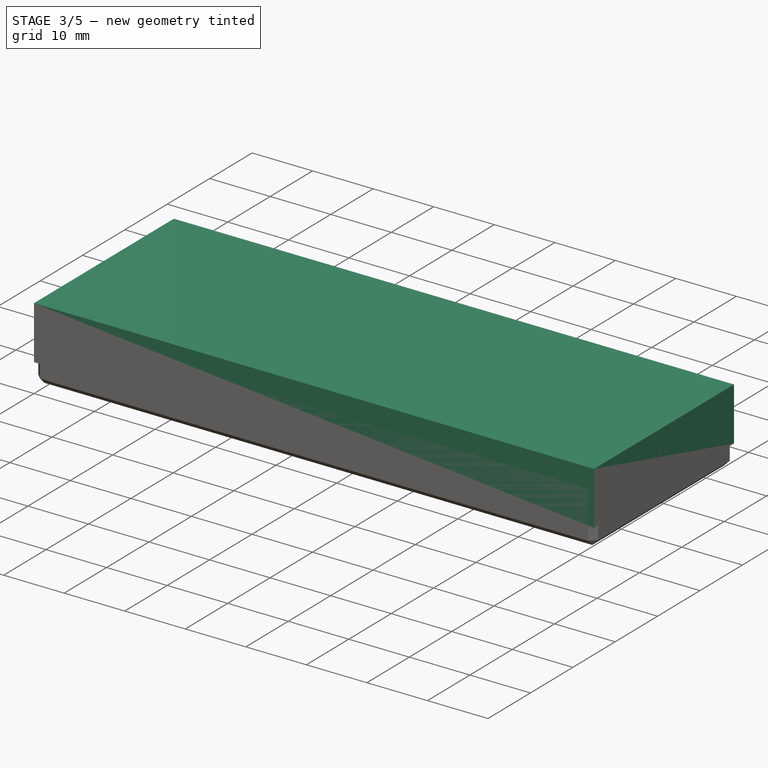
[diagram: stage 3 of 5 — iso view after this stage's code; geometry added in this stage tinted green]
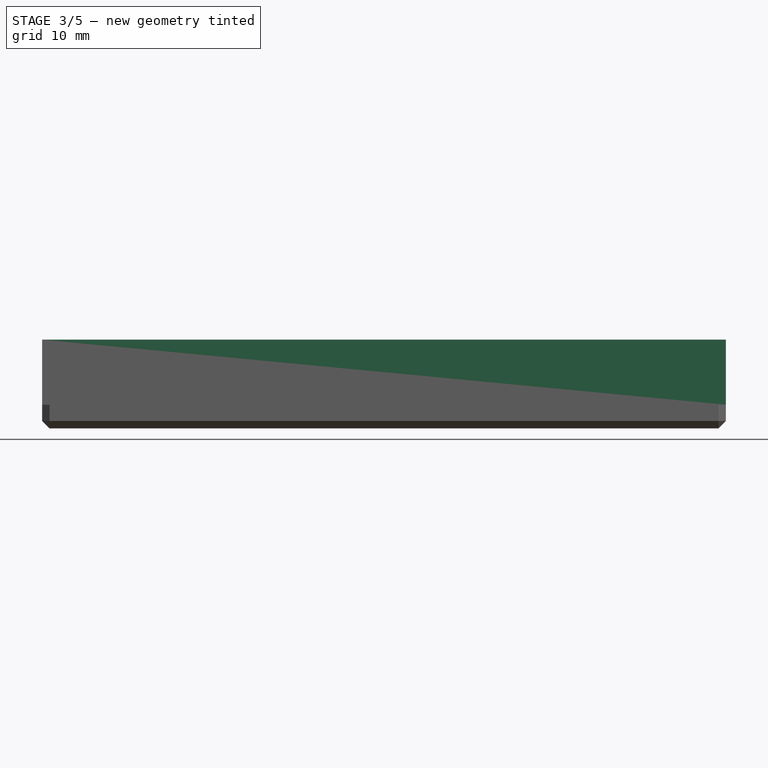
[diagram: stage 3 of 5 — front view after this stage's code; geometry added in this stage tinted green]
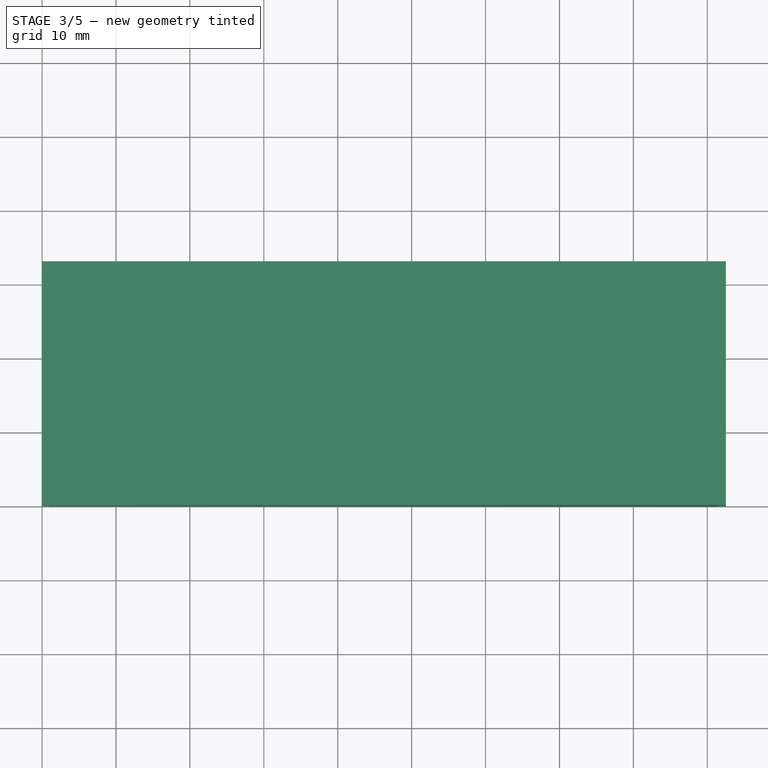
[diagram: stage 3 of 5 — top view after this stage's code; geometry added in this stage tinted green]
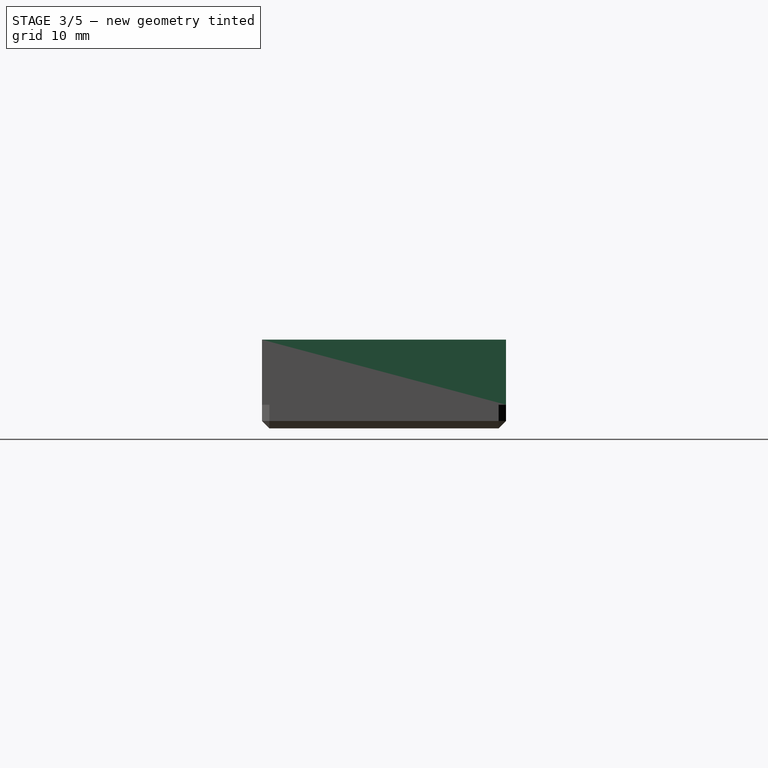
[diagram: stage 3 of 5 — right view after this stage's code; geometry added in this stage tinted green]
FEATURE [Sketcher::SketchObject] Sketch005
  FullyConstrained = true
  MapMode = 5
  Support = -> [XY_Plane002]
  expr: Constraints[17] = Sketch.Constraints[17]
  expr: Constraints[18] = Sketch.Constraints[18]
  expr: Constraints[33] = Sketch.Constraints[33]
  expr: Constraints[34] = Sketch.Constraints[34]
  expr: Constraints[35] = Sketch.Constraints[35]
  expr: Constraints[36] = Sketch.Constraints[36]
  expr: Constraints[37] = Sketch.Constraints[37]
  expr: Constraints[38] = Sketch.Constraints[38]
  sketch-geometry (14):
    g0: LineSegment StartX=0 StartY=0 StartZ=0 EndX=92.52 EndY=0 EndZ=0
    g1: LineSegment StartX=92.52 StartY=0 StartZ=0 EndX=92.52 EndY=33 EndZ=0
    g2: LineSegment StartX=92.52 StartY=33 StartZ=0 EndX=0 EndY=33 EndZ=0
    g3: LineSegment StartX=0 StartY=33 StartZ=0 EndX=0 EndY=0 EndZ=0
    g4: LineSegment StartX=8 StartY=30.8 StartZ=0 EndX=84.52 EndY=30.8 EndZ=0
    g5: LineSegment StartX=84.52 StartY=30.8 StartZ=0 EndX=84.52 EndY=2.2 EndZ=0
    g6: LineSegment StartX=84.52 StartY=2.2 StartZ=0 EndX=8 EndY=2.2 EndZ=0
    g7: LineSegment StartX=8 StartY=2.2 StartZ=0 EndX=8 EndY=30.8 EndZ=0
    g8: LineSegment StartX=0 StartY=2 StartZ=0 EndX=92.52 EndY=2 EndZ=0
    g9: GeomPoint X=0 Y=16.5 Z=0
    g10: LineSegment StartX=0 StartY=31 StartZ=0 EndX=92.52 EndY=31 EndZ=0
    g11: GeomPoint X=46.26 Y=33 Z=0
    g12: LineSegment StartX=2 StartY=33 StartZ=0 EndX=2 EndY=0 EndZ=0
    g13: LineSegment StartX=90.52 StartY=0 StartZ=0 EndX=90.52 EndY=33 EndZ=0
  constraints (39):
    c: Coincident(g0,g1)
    c: Coincident(g1,g2)
    c: Coincident(g2,g3)
    c: Coincident(g3,g0)
    c: Horizontal(g0)
    c: Horizontal(g2)
    c: Vertical(g1)
    c: Vertical(g3)
    c: Coincident(g0,g-1)
    c: Coincident(g4,g5)
    c: Coincident(g5,g6)
    c: Coincident(g6,g7)
    c: Coincident(g7,g4)
    c: Horizontal(g4)
    c: Horizontal(g6)
    c: Vertical(g5)
    c: Vertical(g7)
    c: DistanceY(g7,g7) = 28.6
    c: DistanceX(g4,g4) = 76.52
    c: PointOnObject(g8,g3)
    c: PointOnObject(g8,g1)
    c: Horizontal(g8)
    c: PointOnObject(g10,g1)
    c: Horizontal(g10)
    c: Symmetric(g0,g2,g9)
    c: Symmetric(g10,g8,g9)
    c: Symmetric(g2,g1,g11)
    c: PointOnObject(g12,g2)
    c: PointOnObject(g12,g0)
    c: Vertical(g12)
    c: PointOnObject(g13,g0)
    c: Vertical(g13)
    c: Symmetric(g12,g13,g11)
    c: DistanceX(g0,g12) = 2
    c: DistanceY(g0,g8) = 2
    c: DistanceY(g4,g10) = 0.2
    c: DistanceY(g8,g5) = 0.2
    c: DistanceX(g12,g6) = 6
    c: DistanceX(g5,g13) = 6
FEATURE [PartDesign::Pad] Pad001
  Direction = (0,0,1)
  Length = 12
  Length2 = 10
  Profile = -> Sketch005
  ReferenceAxis = -> Sketch005 [N_Axis]
  Type = 0
FEATURE [Sketcher::SketchObject] Sketch006
  FullyConstrained = true
  MapMode = 5
  Placement = pos=(0,0,0) rot=(1,0,0;3.14159rad)
  Support = -> [Pad001]
  expr: Constraints[16] = Sketch005.Constraints[17]
  expr: Constraints[17] = Sketch005.Constraints[18]
  expr: Constraints[32] = Sketch005.Constraints[33]
  expr: Constraints[33] = Sketch005.Constraints[34]
  expr: Constraints[34] = Sketch005.Constraints[35]
  expr: Constraints[35] = Sketch005.Constraints[36]
  expr: Constraints[36] = Sketch005.Constraints[37]
  expr: Constraints[37] = Sketch005.Constraints[38]
  sketch-geometry (22):
    g0: LineSegment StartX=0 StartY=-33 StartZ=0 EndX=92.52 EndY=-33 EndZ=0
    g1: LineSegment StartX=92.52 StartY=-33 StartZ=0 EndX=92.52 EndY=0 EndZ=0
    g2: LineSegment StartX=92.52 StartY=0 StartZ=0 EndX=0 EndY=0 EndZ=0
    g3: LineSegment StartX=0 StartY=0 StartZ=0 EndX=0 EndY=-33 EndZ=0
    g4: LineSegment StartX=8 StartY=-2.2 StartZ=0 EndX=84.52 EndY=-2.2 EndZ=0
    g5: LineSegment StartX=84.52 StartY=-2.2 StartZ=0 EndX=84.52 EndY=-30.8 EndZ=0
    g6: LineSegment StartX=84.52 StartY=-30.8 StartZ=0 EndX=8 EndY=-30.8 EndZ=0
    g7: LineSegment StartX=8 StartY=-30.8 StartZ=0 EndX=8 EndY=-2.2 EndZ=0
    g8: LineSegment StartX=0 StartY=-31 StartZ=0 EndX=92.52 EndY=-31 EndZ=0
    g9: GeomPoint X=0 Y=-16.5 Z=0
    g10: LineSegment StartX=0 StartY=-2 StartZ=0 EndX=92.52 EndY=-2 EndZ=0
    g11: GeomPoint X=46.26 Y=0 Z=0
    g12: LineSegment StartX=2 StartY=0 StartZ=0 EndX=2 EndY=-33 EndZ=0
    g13: LineSegment StartX=90.52 StartY=-33 StartZ=0 EndX=90.52 EndY=0 EndZ=0
    g14: LineSegment StartX=-0.8 StartY=0.8 StartZ=0 EndX=93.32 EndY=0.8 EndZ=0
    g15: LineSegment StartX=93.32 StartY=0.8 StartZ=0 EndX=93.32 EndY=-33.8 EndZ=0
    g16: LineSegment StartX=93.32 StartY=-33.8 StartZ=0 EndX=-0.8 EndY=-33.8 EndZ=0
    g17: LineSegment StartX=-0.8 StartY=-33.8 StartZ=0 EndX=-0.8 EndY=0.8 EndZ=0
    g18: LineSegment StartX=2.2 StartY=-2.2 StartZ=0 EndX=90.32 EndY=-2.2 EndZ=0
    g19: LineSegment StartX=90.32 StartY=-2.2 StartZ=0 EndX=90.32 EndY=-30.8 EndZ=0
    g20: LineSegment StartX=90.32 StartY=-30.8 StartZ=0 EndX=2.2 EndY=-30.8 EndZ=0
    g21: LineSegment StartX=2.2 StartY=-30.8 StartZ=0 EndX=2.2 EndY=-2.2 EndZ=0
  constraints (63):
    c: Coincident(g0,g1)
    c: Coincident(g1,g2)
    c: Coincident(g2,g3)
    c: Coincident(g3,g0)
    c: Horizontal(g0)
    c: Horizontal(g2)
    c: Vertical(g1)
    c: Vertical(g3)
    c: Coincident(g4,g5)
    c: Coincident(g5,g6)
    c: Coincident(g6,g7)
    c: Coincident(g7,g4)
    c: Horizontal(g4)
    c: Horizontal(g6)
    c: Vertical(g5)
    c: Vertical(g7)
    c: DistanceY(g7,g7) = 28.6
    c: DistanceX(g4,g4) = 76.52
    c: PointOnObject(g8,g3)
    c: PointOnObject(g8,g1)
    c: Horizontal(g8)
    c: PointOnObject(g10,g1)
    c: Horizontal(g10)
    c: Symmetric(g0,g2,g9)
    c: Symmetric(g10,g8,g9)
    c: Symmetric(g2,g1,g11)
    c: PointOnObject(g12,g2)
    c: PointOnObject(g12,g0)
    c: Vertical(g12)
    c: PointOnObject(g13,g0)
    c: Vertical(g13)
    c: Symmetric(g12,g13,g11)
    c: DistanceX(g0,g12) = 2
    c: DistanceY(g0,g8) = 2
    c: DistanceY(g4,g10) = 0.2
    c: DistanceY(g8,g5) = 0.2
    c: DistanceX(g12,g6) = 6
    c: DistanceX(g5,g13) = 6
    c: Coincident(g2,g-1)
    c: Coincident(g14,g15)
    c: Coincident(g15,g16)
    c: Coincident(g16,g17)
    c: Coincident(g17,g14)
    c: Horizontal(g14)
    c: Horizontal(g16)
    c: Vertical(g15)
    c: Vertical(g17)
    c: Coincident(g18,g19)
    c: Coincident(g19,g20)
    c: Coincident(g20,g21)
    c: Coincident(g21,g18)
    c: Horizontal(g18)
    c: Horizontal(g20)
    c: Vertical(g19)
    c: Vertical(g21)
    c: DistanceX(g18,g13) = 0.2
    c: DistanceY(g18,g10) = 0.2
    c: DistanceY(g8,g20) = 0.2
    c: DistanceX(g12,g20) = 0.2
    c: DistanceX(g16,g20) = 3
    c: DistanceY(g16,g20) = 3
    c: DistanceY(g18,g14) = 3
    c: DistanceX(g18,g14) = 3
FEATURE [PartDesign::Pocket] Pocket003
  BaseFeature = -> Pad001
  Direction = (0,0,1)
  Length = 3.2
  Length2 = 5
  Profile = -> Sketch006
  ReferenceAxis = -> Sketch006 [N_Axis]
  Type = 0
FEATURE [Sketcher::SketchObject] Sketch007
  FullyConstrained = true
  MapMode = 5
  Placement = pos=(0,0,0) rot=(1,0,0;3.14159rad)
  Support = -> [Pocket003]
  expr: Constraints[16] = Sketch006.Constraints[16]
  expr: Constraints[17] = Sketch006.Constraints[17]
  expr: Constraints[32] = Sketch006.Constraints[32]
  expr: Constraints[33] = Sketch006.Constraints[33]
  expr: Constraints[34] = Sketch006.Constraints[34]
  expr: Constraints[35] = Sketch006.Constraints[35]
  expr: Constraints[36] = Sketch006.Constraints[36]
  expr: Constraints[37] = Sketch006.Constraints[37]
  expr: Constraints[55] = Sketch006.Constraints[55]
  expr: Constraints[56] = Sketch006.Constraints[56]
  expr: Constraints[57] = Sketch006.Constraints[57]
  expr: Constraints[58] = Sketch006.Constraints[58]
  sketch-geometry (22):
    g0: LineSegment StartX=0 StartY=-33 StartZ=0 EndX=92.52 EndY=-33 EndZ=0
    g1: LineSegment StartX=92.52 StartY=-33 StartZ=0 EndX=92.52 EndY=0 EndZ=0
    g2: LineSegment StartX=92.52 StartY=0 StartZ=0 EndX=0 EndY=0 EndZ=0
    g3: LineSegment StartX=0 StartY=0 StartZ=0 EndX=0 EndY=-33 EndZ=0
    g4: LineSegment StartX=8 StartY=-2.2 StartZ=0 EndX=84.52 EndY=-2.2 EndZ=0
    g5: LineSegment StartX=84.52 StartY=-2.2 StartZ=0 EndX=84.52 EndY=-30.8 EndZ=0
    g6: LineSegment StartX=84.52 StartY=-30.8 StartZ=0 EndX=8 EndY=-30.8 EndZ=0
    g7: LineSegment StartX=8 StartY=-30.8 StartZ=0 EndX=8 EndY=-2.2 EndZ=0
    g8: LineSegment StartX=0 StartY=-31 StartZ=0 EndX=92.52 EndY=-31 EndZ=0
    g9: GeomPoint X=0 Y=-16.5 Z=0
    g10: LineSegment StartX=0 StartY=-2 StartZ=0 EndX=92.52 EndY=-2 EndZ=0
    g11: GeomPoint X=46.26 Y=0 Z=0
    g12: LineSegment StartX=2 StartY=0 StartZ=0 EndX=2 EndY=-33 EndZ=0
    g13: LineSegment StartX=90.52 StartY=-33 StartZ=0 EndX=90.52 EndY=0 EndZ=0
    g14: LineSegment StartX=1 StartY=-1 StartZ=0 EndX=91.52 EndY=-1 EndZ=0
    g15: LineSegment StartX=91.52 StartY=-1 StartZ=0 EndX=91.52 EndY=-32 EndZ=0
    g16: LineSegment StartX=91.52 StartY=-32 StartZ=0 EndX=1 EndY=-32 EndZ=0
    g17: LineSegment StartX=1 StartY=-32 StartZ=0 EndX=1 EndY=-1 EndZ=0
    g18: LineSegment StartX=2.2 StartY=-2.2 StartZ=0 EndX=90.32 EndY=-2.2 EndZ=0
    g19: LineSegment StartX=90.32 StartY=-2.2 StartZ=0 EndX=90.32 EndY=-30.8 EndZ=0
    g20: LineSegment StartX=90.32 StartY=-30.8 StartZ=0 EndX=2.2 EndY=-30.8 EndZ=0
    g21: LineSegment StartX=2.2 StartY=-30.8 StartZ=0 EndX=2.2 EndY=-2.2 EndZ=0
  constraints (63):
    c: Coincident(g0,g1)
    c: Coincident(g1,g2)
    c: Coincident(g2,g3)
    c: Coincident(g3,g0)
    c: Horizontal(g0)
    c: Horizontal(g2)
    c: Vertical(g1)
    c: Vertical(g3)
    c: Coincident(g4,g5)
    c: Coincident(g5,g6)
    c: Coincident(g6,g7)
    c: Coincident(g7,g4)
    c: Horizontal(g4)
    c: Horizontal(g6)
    c: Vertical(g5)
    c: Vertical(g7)
    c: DistanceY(g7,g7) = 28.6
    c: DistanceX(g4,g4) = 76.52
    c: PointOnObject(g8,g3)
    c: PointOnObject(g8,g1)
    c: Horizontal(g8)
    c: PointOnObject(g10,g1)
    c: Horizontal(g10)
    c: Symmetric(g0,g2,g9)
    c: Symmetric(g10,g8,g9)
    c: Symmetric(g2,g1,g11)
    c: PointOnObject(g12,g2)
    c: PointOnObject(g12,g0)
    c: Vertical(g12)
    c: PointOnObject(g13,g0)
    c: Vertical(g13)
    c: Symmetric(g12,g13,g11)
    c: DistanceX(g0,g12) = 2
    c: DistanceY(g0,g8) = 2
    c: DistanceY(g4,g10) = 0.2
    c: DistanceY(g8,g5) = 0.2
    c: DistanceX(g12,g6) = 6
    c: DistanceX(g5,g13) = 6
    c: Coincident(g2,g-1)
    c: Coincident(g14,g15)
    c: Coincident(g15,g16)
    c: Coincident(g16,g17)
    c: Coincident(g17,g14)
    c: Horizontal(g14)
    c: Horizontal(g16)
    c: Vertical(g15)
    c: Vertical(g17)
    c: Coincident(g18,g19)
    c: Coincident(g19,g20)
    c: Coincident(g20,g21)
    c: Coincident(g21,g18)
    c: Horizontal(g18)
    c: Horizontal(g20)
    c: Vertical(g19)
    c: Vertical(g21)
    c: DistanceX(g18,g13) = 0.2
    c: DistanceY(g18,g10) = 0.2
    c: DistanceY(g8,g20) = 0.2
    c: DistanceX(g12,g20) = 0.2
    c: DistanceX(g16,g20) = 1.2
    c: DistanceY(g16,g20) = 1.2
    c: DistanceY(g18,g14) = 1.2
    c: DistanceX(g18,g14) = 1.2
FEATURE [PartDesign::Pocket] Pocket004
  BaseFeature = -> Pocket003
  Direction = (0,0,1)
  Length = 3.9
  Length2 = 5
  Profile = -> Sketch007
  ReferenceAxis = -> Sketch007 [N_Axis]
  Type = 0
FEATURE [Sketcher::SketchObject] Sketch008
  FullyConstrained = true
  MapMode = 5
  Placement = pos=(0,0,0) rot=(1,0,0;3.14159rad)
  Support = -> [Pocket004]
  expr: Constraints[16] = Sketch007.Constraints[16]
  expr: Constraints[17] = Sketch007.Constraints[17]
  expr: Constraints[32] = Sketch007.Constraints[32]
  expr: Constraints[33] = Sketch007.Constraints[33]
  expr: Constraints[34] = Sketch007.Constraints[34]
  expr: Constraints[35] = Sketch007.Constraints[35]
  expr: Constraints[36] = Sketch007.Constraints[36]
  expr: Constraints[37] = Sketch007.Constraints[37]
  expr: Constraints[55] = Sketch007.Constraints[55]
  expr: Constraints[56] = Sketch007.Constraints[56]
  expr: Constraints[57] = Sketch007.Constraints[57]
  expr: Constraints[58] = Sketch007.Constraints[58]
  expr: Constraints[59] = Sketch007.Constraints[59]
  expr: Constraints[60] = Sketch007.Constraints[60]
  expr: Constraints[61] = Sketch007.Constraints[61]
  expr: Constraints[62] = Sketch007.Constraints[62]
  sketch-geometry (58):
    g0: LineSegment StartX=0 StartY=-33 StartZ=0 EndX=92.52 EndY=-33 EndZ=0
    g1: LineSegment StartX=92.52 StartY=-33 StartZ=0 EndX=92.52 EndY=0 EndZ=0
    g2: LineSegment StartX=92.52 StartY=0 StartZ=0 EndX=0 EndY=0 EndZ=0
    g3: LineSegment StartX=0 StartY=0 StartZ=0 EndX=0 EndY=-33 EndZ=0
    g4: LineSegment StartX=8 StartY=-2.2 StartZ=0 EndX=84.52 EndY=-2.2 EndZ=0
    g5: LineSegment StartX=84.52 StartY=-2.2 StartZ=0 EndX=84.52 EndY=-30.8 EndZ=0
    g6: LineSegment StartX=84.52 StartY=-30.8 StartZ=0 EndX=8 EndY=-30.8 EndZ=0
    g7: LineSegment StartX=8 StartY=-30.8 StartZ=0 EndX=8 EndY=-2.2 EndZ=0
    g8: LineSegment StartX=0 StartY=-31 StartZ=0 EndX=92.52 EndY=-31 EndZ=0
    g9: GeomPoint X=0 Y=-16.5 Z=0
    g10: LineSegment StartX=0 StartY=-2 StartZ=0 EndX=92.52 EndY=-2 EndZ=0
    g11: GeomPoint X=46.26 Y=0 Z=0
    g12: LineSegment StartX=2 StartY=0 StartZ=0 EndX=2 EndY=-33 EndZ=0
    g13: LineSegment StartX=90.52 StartY=-33 StartZ=0 EndX=90.52 EndY=0 EndZ=0
    g14: LineSegment StartX=1 StartY=-1 StartZ=0 EndX=91.52 EndY=-1 EndZ=0
    g15: LineSegment StartX=91.52 StartY=-1 StartZ=0 EndX=91.52 EndY=-32 EndZ=0
    g16: LineSegment StartX=91.52 StartY=-32 StartZ=0 EndX=1 EndY=-32 EndZ=0
    g17: LineSegment StartX=1 StartY=-32 StartZ=0 EndX=1 EndY=-1 EndZ=0
    g18: LineSegment StartX=2.2 StartY=-2.2 StartZ=0 EndX=90.32 EndY=-2.2 EndZ=0
    g19: LineSegment StartX=90.32 StartY=-2.2 StartZ=0 EndX=90.32 EndY=-30.8 EndZ=0
    g20: LineSegment StartX=90.32 StartY=-30.8 StartZ=0 EndX=2.2 EndY=-30.8 EndZ=0
    g21: LineSegment StartX=2.2 StartY=-30.8 StartZ=0 EndX=2.2 EndY=-2.2 EndZ=0
    g22: LineSegment StartX=2.2 StartY=-4 StartZ=0 EndX=2.2 EndY=-29 EndZ=0
    g23: LineSegment StartX=2.2 StartY=-4 StartZ=0 EndX=9 EndY=-4 EndZ=0
    g24: LineSegment StartX=9 StartY=-4 StartZ=0 EndX=9 EndY=-2.2 EndZ=0
    g25: LineSegment StartX=9 StartY=-2.2 StartZ=0 EndX=10 EndY=-2.2 EndZ=0
    g26: LineSegment StartX=10 StartY=-2.2 StartZ=0 EndX=10 EndY=-4 EndZ=0
    g27: LineSegment StartX=10 StartY=-4 StartZ=0 EndX=20 EndY=-4 EndZ=0
    g28: LineSegment StartX=20 StartY=-4 StartZ=0 EndX=20 EndY=-2.2 EndZ=0
    g29: LineSegment StartX=20 StartY=-2.2 StartZ=0 EndX=21 EndY=-2.2 EndZ=0
    g30: LineSegment StartX=21 StartY=-2.2 StartZ=0 EndX=21 EndY=-3 EndZ=0
    g31: LineSegment StartX=21 StartY=-3 StartZ=0 EndX=71.52 EndY=-3 EndZ=0
    g32: LineSegment StartX=71.52 StartY=-3 StartZ=0 EndX=71.52 EndY=-2.2 EndZ=0
    g33: LineSegment StartX=71.52 StartY=-2.2 StartZ=0 EndX=72.52 EndY=-2.2 EndZ=0
    g34: LineSegment StartX=72.52 StartY=-2.2 StartZ=0 EndX=72.52 EndY=-4 EndZ=0
    g35: LineSegment StartX=72.52 StartY=-4 StartZ=0 EndX=82.52 EndY=-4 EndZ=0
    g36: LineSegment StartX=82.52 StartY=-4 StartZ=0 EndX=82.52 EndY=-2.2 EndZ=0
    g37: LineSegment StartX=82.52 StartY=-2.2 StartZ=0 EndX=83.52 EndY=-2.2 EndZ=0
    g38: LineSegment StartX=83.52 StartY=-2.2 StartZ=0 EndX=83.52 EndY=-4 EndZ=0
    g39: LineSegment StartX=83.52 StartY=-4 StartZ=0 EndX=90.32 EndY=-4 EndZ=0
    g40: LineSegment StartX=90.32 StartY=-4 StartZ=0 EndX=90.32 EndY=-29 EndZ=0
    g41: LineSegment StartX=90.32 StartY=-29 StartZ=0 EndX=83.52 EndY=-29 EndZ=0
    g42: LineSegment StartX=83.52 StartY=-29 StartZ=0 EndX=83.52 EndY=-30.8 EndZ=0
    g43: LineSegment StartX=83.52 StartY=-30.8 StartZ=0 EndX=82.52 EndY=-30.8 EndZ=0
    g44: LineSegment StartX=82.52 StartY=-30.8 StartZ=0 EndX=82.52 EndY=-29 EndZ=0
    g45: LineSegment StartX=82.52 StartY=-29 StartZ=0 EndX=72.52 EndY=-29 EndZ=0
    g46: LineSegment StartX=72.52 StartY=-29 StartZ=0 EndX=72.52 EndY=-30.8 EndZ=0
    g47: LineSegment StartX=72.52 StartY=-30.8 StartZ=0 EndX=71.52 EndY=-30.8 EndZ=0
    g48: LineSegment StartX=71.52 StartY=-30.8 StartZ=0 EndX=71.52 EndY=-30 EndZ=0
    g49: LineSegment StartX=71.52 StartY=-30 StartZ=0 EndX=21 EndY=-30 EndZ=0
    g50: LineSegment StartX=21 StartY=-30 StartZ=0 EndX=21 EndY=-30.8 EndZ=0
    g51: LineSegment StartX=21 StartY=-30.8 StartZ=0 EndX=20 EndY=-30.8 EndZ=0
    g52: LineSegment StartX=20 StartY=-30.8 StartZ=0 EndX=20 EndY=-29 EndZ=0
    g53: LineSegment StartX=20 StartY=-29 StartZ=0 EndX=10 EndY=-29 EndZ=0
    g54: LineSegment StartX=10 StartY=-29 StartZ=0 EndX=10 EndY=-30.8 EndZ=0
    g55: LineSegment StartX=10 StartY=-30.8 StartZ=0 EndX=9 EndY=-30.8 EndZ=0
    g56: LineSegment StartX=9 StartY=-30.8 StartZ=0 EndX=9 EndY=-29 EndZ=0
    g57: LineSegment StartX=9 StartY=-29 StartZ=0 EndX=2.2 EndY=-29 EndZ=0
  constraints (171):
    c: Coincident(g0,g1)
    c: Coincident(g1,g2)
    c: Coincident(g2,g3)
    c: Coincident(g3,g0)
    c: Horizontal(g0)
    c: Horizontal(g2)
    c: Vertical(g1)
    c: Vertical(g3)
    c: Coincident(g4,g5)
    c: Coincident(g5,g6)
    c: Coincident(g6,g7)
    c: Coincident(g7,g4)
    c: Horizontal(g4)
    c: Horizontal(g6)
    c: Vertical(g5)
    c: Vertical(g7)
    c: DistanceY(g7,g7) = 28.6
    c: DistanceX(g4,g4) = 76.52
    c: PointOnObject(g8,g3)
    c: PointOnObject(g8,g1)
    c: Horizontal(g8)
    c: PointOnObject(g10,g1)
    c: Horizontal(g10)
    c: Symmetric(g0,g2,g9)
    c: Symmetric(g10,g8,g9)
    c: Symmetric(g2,g1,g11)
    c: PointOnObject(g12,g2)
    c: PointOnObject(g12,g0)
    c: Vertical(g12)
    c: PointOnObject(g13,g0)
    c: Vertical(g13)
    c: Symmetric(g12,g13,g11)
    c: DistanceX(g0,g12) = 2
    c: DistanceY(g0,g8) = 2
    c: DistanceY(g4,g10) = 0.2
    c: DistanceY(g8,g5) = 0.2
    c: DistanceX(g12,g6) = 6
    c: DistanceX(g5,g13) = 6
    c: Coincident(g2,g-1)
    c: Coincident(g14,g15)
    c: Coincident(g15,g16)
    c: Coincident(g16,g17)
    c: Coincident(g17,g14)
    c: Horizontal(g14)
    c: Horizontal(g16)
    c: Vertical(g15)
    c: Vertical(g17)
    c: Coincident(g18,g19)
    c: Coincident(g19,g20)
    c: Coincident(g20,g21)
    c: Coincident(g21,g18)
    c: Horizontal(g18)
    c: Horizontal(g20)
    c: Vertical(g19)
    c: Vertical(g21)
    c: DistanceX(g18,g13) = 0.2
    c: DistanceY(g18,g10) = 0.2
    c: DistanceY(g8,g20) = 0.2
    c: DistanceX(g12,g20) = 0.2
    c: DistanceX(g16,g20) = 1.2
    c: DistanceY(g16,g20) = 1.2
    c: DistanceY(g18,g14) = 1.2
    c: DistanceX(g18,g14) = 1.2
    c: Vertical(g22)
    c: Coincident(g23,g22)
    c: Horizontal(g23)
    c: Coincident(g24,g23)
    c: Vertical(g24)
    c: Coincident(g25,g24)
    c: Horizontal(g25)
    c: Coincident(g26,g25)
    c: Vertical(g26)
    c: Coincident(g27,g26)
    c: Horizontal(g27)
    c: Coincident(g28,g27)
    c: Vertical(g28)
    c: Coincident(g29,g28)
    c: Horizontal(g29)
    c: Coincident(g30,g29)
    c: Vertical(g30)
    c: Coincident(g31,g30)
    c: Horizontal(g31)
    c: Coincident(g32,g31)
    c: Vertical(g32)
    c: Coincident(g33,g32)
    c: Horizontal(g33)
    c: Coincident(g34,g33)
    c: Vertical(g34)
    c: Coincident(g35,g34)
    c: Horizontal(g35)
    c: Coincident(g36,g35)
    c: Vertical(g36)
    c: Coincident(g37,g36)
    c: Horizontal(g37)
    c: Coincident(g38,g37)
    c: Coincident(g39,g38)
    c: Horizontal(g39)
    c: Coincident(g40,g39)
    c: Vertical(g40)
    c: Coincident(g41,g40)
    c: Horizontal(g41)
    c: Coincident(g42,g41)
    c: Vertical(g42)
    c: Coincident(g43,g42)
    c: Horizontal(g43)
    c: Coincident(g44,g43)
    c: Vertical(g44)
    c: Coincident(g45,g44)
    c: Horizontal(g45)
    c: Coincident(g46,g45)
    c: Vertical(g46)
    c: Coincident(g47,g46)
    c: Horizontal(g47)
    c: Coincident(g48,g47)
    c: Vertical(g48)
    c: Coincident(g49,g48)
    c: Horizontal(g49)
    c: Coincident(g50,g49)
    c: Vertical(g50)
    c: Coincident(g51,g50)
    c: Horizontal(g51)
    c: Coincident(g52,g51)
    c: Vertical(g52)
    c: Coincident(g53,g52)
    c: Horizontal(g53)
    c: Coincident(g54,g53)
    c: Vertical(g54)
    c: Coincident(g55,g54)
    c: Horizontal(g55)
    c: Coincident(g56,g55)
    c: Vertical(g56)
    c: Coincident(g57,g56)
    c: Coincident(g57,g22)
    c: Horizontal(g57)
    c: Equal(g25,g29)
    c: Equal(g29,g33)
    c: Equal(g33,g37)
    c: Vertical(g38)
    c: DistanceX(g25,g25) = 1
    c: DistanceX(g37,g4) = 1
    c: Equal(g39,g23)
    c: DistanceY(g30,g10) = 1
    c: Equal(g32,g30)
    c: Equal(g35,g27)
    c: Equal(g24,g38)
    c: Equal(g34,g28)
    c: DistanceY(g22,g10) = 2
    c: Equal(g55,g25)
    c: Equal(g55,g51)
    c: Equal(g51,g47)
    c: Equal(g47,g43)
    c: Equal(g41,g39)
    c: Equal(g42,g38)
    c: Equal(g45,g35)
    c: Equal(g44,g36)
    c: DistanceX(g35,g35) = 10
    c: Equal(g56,g24)
    c: Equal(g54,g26)
    c: Equal(g27,g53)
    c: Equal(g23,g57)
    c: Equal(g50,g30)
    c: DistanceY(g34,g31) = 1
    c: PointOnObject(g51,g6)
    c: PointOnObject(g54,g6)
    c: PointOnObject(g47,g6)
    c: PointOnObject(g42,g6)
    c: PointOnObject(g37,g4)
    c: PointOnObject(g22,g21)
    c: PointOnObject(g25,g4)
    c: PointOnObject(g29,g4)
    c: PointOnObject(g39,g19)
FEATURE [PartDesign::Pocket] Pocket005
  BaseFeature = -> Pocket004
  Direction = (0,0,1)
  Length = 10
  Length2 = 5
  Profile = -> Sketch008
  ReferenceAxis = -> Sketch008 [N_Axis]
  Type = 0
FEATURE [PartDesign::Chamfer] Chamfer007
  Angle = 45
  Base = -> Chamfer004 [Edge96,Edge74,Edge118,Edge98,Edge100,Edge102,Edge121,Edge117,Edge73,Edge156,Edge155,Edge152,Edge151,Edge93,Edge154,Edge106,Edge153,Edge104,Edge105,Edge63]
  BaseFeature = -> Chamfer004
  ChamferType = 0
  FlipDirection = false
  Size = 1
  Size2 = 1
  SupportTransform = false
  UseAllEdges = false
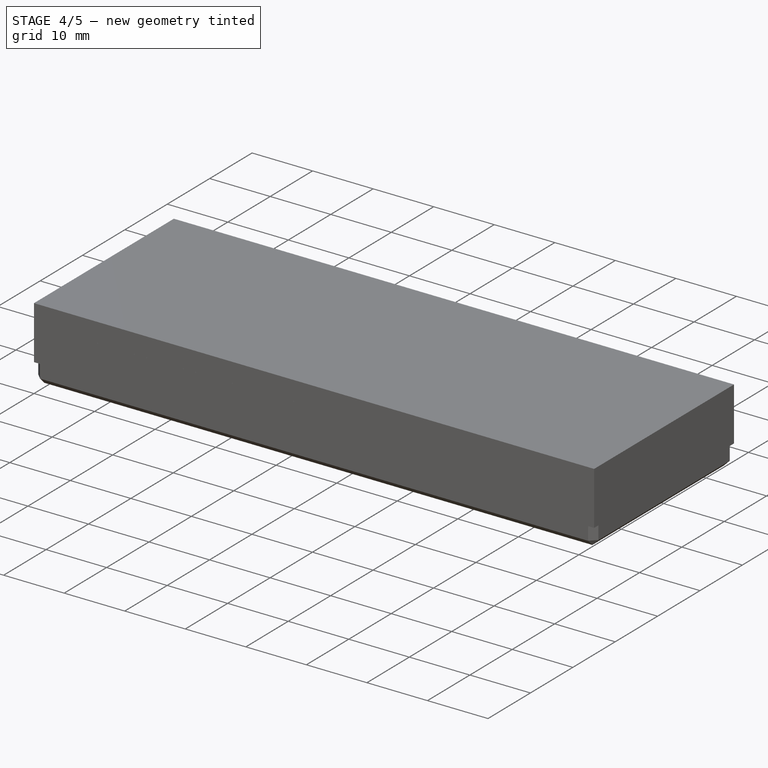
[diagram: stage 4 of 5 — iso view after this stage's code; geometry added in this stage tinted green]
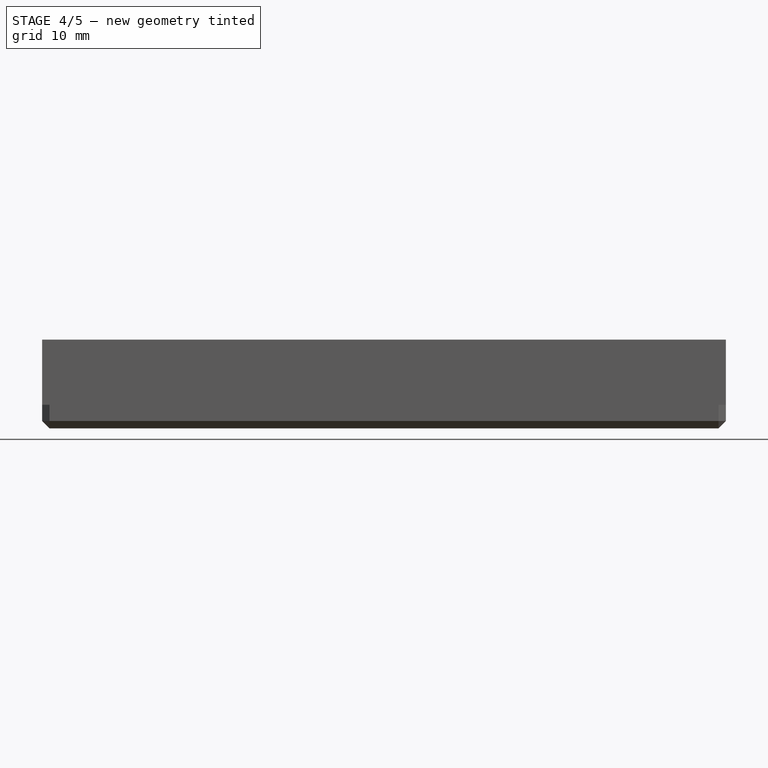
[diagram: stage 4 of 5 — front view after this stage's code; geometry added in this stage tinted green]
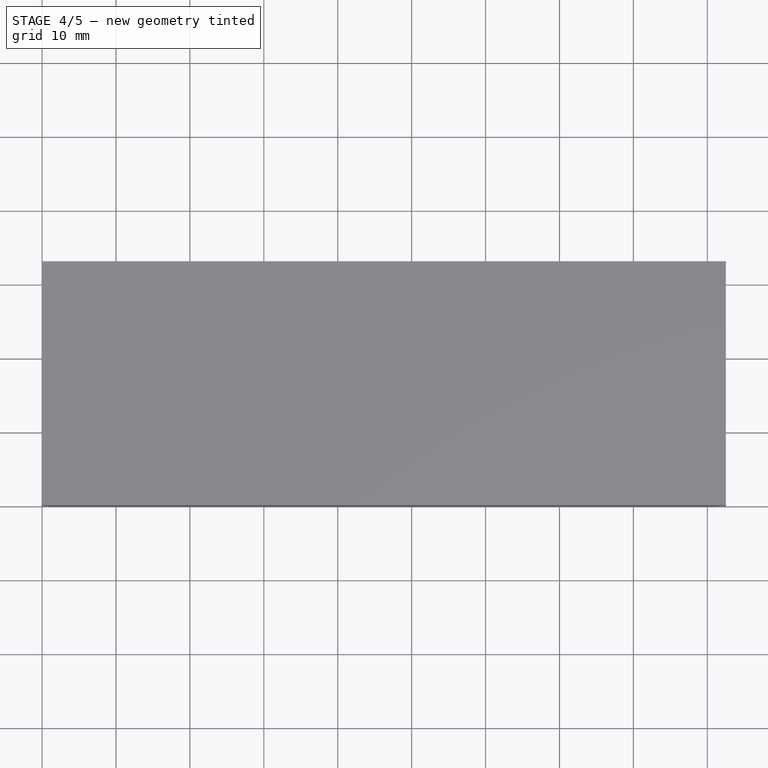
[diagram: stage 4 of 5 — top view after this stage's code; geometry added in this stage tinted green]
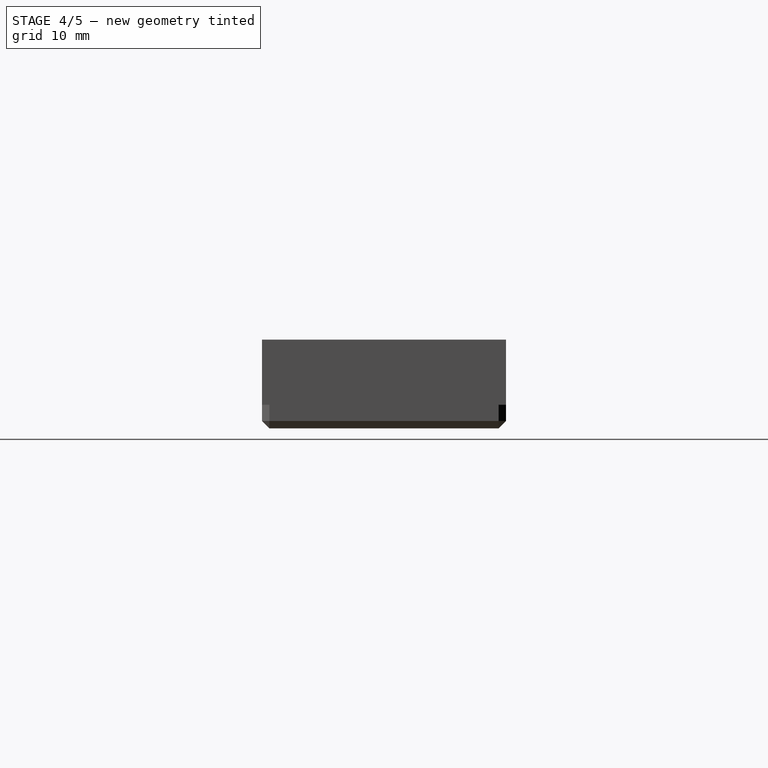
[diagram: stage 4 of 5 — right view after this stage's code; geometry added in this stage tinted green]
FEATURE [Sketcher::SketchObject] Sketch009
  FullyConstrained = true
  MapMode = 5
  Placement = pos=(0,0,0) rot=(1,0,0;3.14159rad)
  Support = -> [Pocket005]
  expr: Constraints[138] = Sketch008.Constraints[138]
  expr: Constraints[139] = Sketch008.Constraints[139]
  expr: Constraints[141] = Sketch008.Constraints[141]
  expr: Constraints[146] = Sketch008.Constraints[146]
  expr: Constraints[155] = Sketch008.Constraints[155]
  expr: Constraints[161] = Sketch008.Constraints[161]
  expr: Constraints[16] = Sketch008.Constraints[16]
  expr: Constraints[17] = Sketch008.Constraints[17]
  expr: Constraints[32] = Sketch008.Constraints[32]
  expr: Constraints[33] = Sketch008.Constraints[33]
  expr: Constraints[34] = Sketch008.Constraints[34]
  expr: Constraints[35] = Sketch008.Constraints[35]
  expr: Constraints[36] = Sketch008.Constraints[36]
  expr: Constraints[37] = Sketch008.Constraints[37]
  expr: Constraints[55] = Sketch008.Constraints[55]
  expr: Constraints[56] = Sketch008.Constraints[56]
  expr: Constraints[57] = Sketch008.Constraints[57]
  expr: Constraints[58] = Sketch008.Constraints[58]
  expr: Constraints[59] = Sketch008.Constraints[59]
  expr: Constraints[60] = Sketch008.Constraints[60]
  expr: Constraints[61] = Sketch008.Constraints[61]
  expr: Constraints[62] = Sketch008.Constraints[62]
  sketch-geometry (74):
    g0: LineSegment StartX=0 StartY=-33 StartZ=0 EndX=92.52 EndY=-33 EndZ=0
    g1: LineSegment StartX=92.52 StartY=-33 StartZ=0 EndX=92.52 EndY=0 EndZ=0
    g2: LineSegment StartX=92.52 StartY=0 StartZ=0 EndX=0 EndY=0 EndZ=0
    g3: LineSegment StartX=0 StartY=0 StartZ=0 EndX=0 EndY=-33 EndZ=0
    g4: LineSegment StartX=8 StartY=-2.2 StartZ=0 EndX=84.52 EndY=-2.2 EndZ=0
    g5: LineSegment StartX=84.52 StartY=-2.2 StartZ=0 EndX=84.52 EndY=-30.8 EndZ=0
    g6: LineSegment StartX=84.52 StartY=-30.8 StartZ=0 EndX=8 EndY=-30.8 EndZ=0
    g7: LineSegment StartX=8 StartY=-30.8 StartZ=0 EndX=8 EndY=-2.2 EndZ=0
    g8: LineSegment StartX=0 StartY=-31 StartZ=0 EndX=92.52 EndY=-31 EndZ=0
    g9: GeomPoint X=0 Y=-16.5 Z=0
    g10: LineSegment StartX=0 StartY=-2 StartZ=0 EndX=92.52 EndY=-2 EndZ=0
    g11: GeomPoint X=46.26 Y=0 Z=0
    g12: LineSegment StartX=2 StartY=0 StartZ=0 EndX=2 EndY=-33 EndZ=0
    g13: LineSegment StartX=90.52 StartY=-33 StartZ=0 EndX=90.52 EndY=0 EndZ=0
    g14: LineSegment StartX=1 StartY=-1 StartZ=0 EndX=91.52 EndY=-1 EndZ=0
    g15: LineSegment StartX=91.52 StartY=-1 StartZ=0 EndX=91.52 EndY=-32 EndZ=0
    g16: LineSegment StartX=91.52 StartY=-32 StartZ=0 EndX=1 EndY=-32 EndZ=0
    g17: LineSegment StartX=1 StartY=-32 StartZ=0 EndX=1 EndY=-1 EndZ=0
    g18: LineSegment StartX=2.2 StartY=-2.2 StartZ=0 EndX=90.32 EndY=-2.2 EndZ=0
    g19: LineSegment StartX=90.32 StartY=-2.2 StartZ=0 EndX=90.32 EndY=-30.8 EndZ=0
    g20: LineSegment StartX=90.32 StartY=-30.8 StartZ=0 EndX=2.2 EndY=-30.8 EndZ=0
    g21: LineSegment StartX=2.2 StartY=-30.8 StartZ=0 EndX=2.2 EndY=-2.2 EndZ=0
    g22: LineSegment StartX=2.2 StartY=-4 StartZ=0 EndX=2.2 EndY=-29 EndZ=0
    g23: LineSegment StartX=2.2 StartY=-4 StartZ=0 EndX=9 EndY=-4 EndZ=0
    g24: LineSegment StartX=9 StartY=-4 StartZ=0 EndX=9 EndY=-2.2 EndZ=0
    g25: LineSegment StartX=9 StartY=-2.2 StartZ=0 EndX=10 EndY=-2.2 EndZ=0
    g26: LineSegment StartX=10 StartY=-2.2 StartZ=0 EndX=10 EndY=-4 EndZ=0
    g27: LineSegment StartX=10 StartY=-4 StartZ=0 EndX=20 EndY=-4 EndZ=0
    g28: LineSegment StartX=20 StartY=-4 StartZ=0 EndX=20 EndY=-2.2 EndZ=0
    g29: LineSegment StartX=20 StartY=-2.2 StartZ=0 EndX=21 EndY=-2.2 EndZ=0
    g30: LineSegment StartX=21 StartY=-2.2 StartZ=0 EndX=21 EndY=-3 EndZ=0
    g31: LineSegment StartX=21 StartY=-3 StartZ=0 EndX=71.52 EndY=-3 EndZ=0
    g32: LineSegment StartX=71.52 StartY=-3 StartZ=0 EndX=71.52 EndY=-2.2 EndZ=0
    g33: LineSegment StartX=71.52 StartY=-2.2 StartZ=0 EndX=72.52 EndY=-2.2 EndZ=0
    g34: LineSegment StartX=72.52 StartY=-2.2 StartZ=0 EndX=72.52 EndY=-4 EndZ=0
    g35: LineSegment StartX=72.52 StartY=-4 StartZ=0 EndX=82.52 EndY=-4 EndZ=0
    g36: LineSegment StartX=82.52 StartY=-4 StartZ=0 EndX=82.52 EndY=-2.2 EndZ=0
    g37: LineSegment StartX=82.52 StartY=-2.2 StartZ=0 EndX=83.52 EndY=-2.2 EndZ=0
    g38: LineSegment StartX=83.52 StartY=-2.2 StartZ=0 EndX=83.52 EndY=-4 EndZ=0
    g39: LineSegment StartX=83.52 StartY=-4 StartZ=0 EndX=90.32 EndY=-4 EndZ=0
    g40: LineSegment StartX=90.32 StartY=-4 StartZ=0 EndX=90.32 EndY=-29 EndZ=0
    g41: LineSegment StartX=90.32 StartY=-29 StartZ=0 EndX=83.52 EndY=-29 EndZ=0
    g42: LineSegment StartX=83.52 StartY=-29 StartZ=0 EndX=83.52 EndY=-30.8 EndZ=0
    g43: LineSegment StartX=83.52 StartY=-30.8 StartZ=0 EndX=82.52 EndY=-30.8 EndZ=0
    g44: LineSegment StartX=82.52 StartY=-30.8 StartZ=0 EndX=82.52 EndY=-29 EndZ=0
    g45: LineSegment StartX=82.52 StartY=-29 StartZ=0 EndX=72.52 EndY=-29 EndZ=0
    g46: LineSegment StartX=72.52 StartY=-29 StartZ=0 EndX=72.52 EndY=-30.8 EndZ=0
    g47: LineSegment StartX=72.52 StartY=-30.8 StartZ=0 EndX=71.52 EndY=-30.8 EndZ=0
    g48: LineSegment StartX=71.52 StartY=-30.8 StartZ=0 EndX=71.52 EndY=-30 EndZ=0
    g49: LineSegment StartX=71.52 StartY=-30 StartZ=0 EndX=21 EndY=-30 EndZ=0
    g50: LineSegment StartX=21 StartY=-30 StartZ=0 EndX=21 EndY=-30.8 EndZ=0
    g51: LineSegment StartX=21 StartY=-30.8 StartZ=0 EndX=20 EndY=-30.8 EndZ=0
    g52: LineSegment StartX=20 StartY=-30.8 StartZ=0 EndX=20 EndY=-29 EndZ=0
    g53: LineSegment StartX=20 StartY=-29 StartZ=0 EndX=10 EndY=-29 EndZ=0
    g54: LineSegment StartX=10 StartY=-29 StartZ=0 EndX=10 EndY=-30.8 EndZ=0
    g55: LineSegment StartX=10 StartY=-30.8 StartZ=0 EndX=9 EndY=-30.8 EndZ=0
    g56: LineSegment StartX=9 StartY=-30.8 StartZ=0 EndX=9 EndY=-29 EndZ=0
    g57: LineSegment StartX=9 StartY=-29 StartZ=0 EndX=2.2 EndY=-29 EndZ=0
    g58: LineSegment StartX=90.52 StartY=-2 StartZ=0 EndX=84.52 EndY=-2 EndZ=0
    g59: LineSegment StartX=84.52 StartY=-2 StartZ=0 EndX=84.52 EndY=-4 EndZ=0
    g60: LineSegment StartX=84.52 StartY=-4 StartZ=0 EndX=90.52 EndY=-4 EndZ=0
    g61: LineSegment StartX=90.52 StartY=-4 StartZ=0 EndX=90.52 EndY=-2 EndZ=0
    g62: LineSegment StartX=84.52 StartY=-29 StartZ=0 EndX=90.52 EndY=-29 EndZ=0
    g63: LineSegment StartX=90.52 StartY=-29 StartZ=0 EndX=90.52 EndY=-31 EndZ=0
    g64: LineSegment StartX=90.52 StartY=-31 StartZ=0 EndX=84.52 EndY=-31 EndZ=0
    g65: LineSegment StartX=84.52 StartY=-31 StartZ=0 EndX=84.52 EndY=-29 EndZ=0
    g66: LineSegment StartX=8 StartY=-29 StartZ=0 EndX=2 EndY=-29 EndZ=0
    g67: LineSegment StartX=2 StartY=-29 StartZ=0 EndX=2 EndY=-31 EndZ=0
    g68: LineSegment StartX=2 StartY=-31 StartZ=0 EndX=8 EndY=-31 EndZ=0
    g69: LineSegment StartX=8 StartY=-31 StartZ=0 EndX=8 EndY=-29 EndZ=0
    g70: LineSegment StartX=8 StartY=-4 StartZ=0 EndX=2 EndY=-4 EndZ=0
    g71: LineSegment StartX=2 StartY=-4 StartZ=0 EndX=2 EndY=-2 EndZ=0
    g72: LineSegment StartX=2 StartY=-2 StartZ=0 EndX=8 EndY=-2 EndZ=0
    g73: LineSegment StartX=8 StartY=-2 StartZ=0 EndX=8 EndY=-4 EndZ=0
  constraints (219):
    c: Coincident(g0,g1)
    c: Coincident(g1,g2)
    c: Coincident(g2,g3)
    c: Coincident(g3,g0)
    c: Horizontal(g0)
    c: Horizontal(g2)
    c: Vertical(g1)
    c: Vertical(g3)
    c: Coincident(g4,g5)
    c: Coincident(g5,g6)
    c: Coincident(g6,g7)
    c: Coincident(g7,g4)
    c: Horizontal(g4)
    c: Horizontal(g6)
    c: Vertical(g5)
    c: Vertical(g7)
    c: DistanceY(g7,g7) = 28.6
    c: DistanceX(g4,g4) = 76.52
    c: PointOnObject(g8,g3)
    c: PointOnObject(g8,g1)
    c: Horizontal(g8)
    c: PointOnObject(g10,g1)
    c: Horizontal(g10)
    c: Symmetric(g0,g2,g9)
    c: Symmetric(g10,g8,g9)
    c: Symmetric(g2,g1,g11)
    c: PointOnObject(g12,g2)
    c: PointOnObject(g12,g0)
    c: Vertical(g12)
    c: PointOnObject(g13,g0)
    c: Vertical(g13)
    c: Symmetric(g12,g13,g11)
    c: DistanceX(g0,g12) = 2
    c: DistanceY(g0,g8) = 2
    c: DistanceY(g4,g10) = 0.2
    c: DistanceY(g8,g5) = 0.2
    c: DistanceX(g12,g6) = 6
    c: DistanceX(g5,g13) = 6
    c: Coincident(g2,g-1)
    c: Coincident(g14,g15)
    c: Coincident(g15,g16)
    c: Coincident(g16,g17)
    c: Coincident(g17,g14)
    c: Horizontal(g14)
    c: Horizontal(g16)
    c: Vertical(g15)
    c: Vertical(g17)
    c: Coincident(g18,g19)
    c: Coincident(g19,g20)
    c: Coincident(g20,g21)
    c: Coincident(g21,g18)
    c: Horizontal(g18)
    c: Horizontal(g20)
    c: Vertical(g19)
    c: Vertical(g21)
    c: DistanceX(g18,g13) = 0.2
    c: DistanceY(g18,g10) = 0.2
    c: DistanceY(g8,g20) = 0.2
    c: DistanceX(g12,g20) = 0.2
    c: DistanceX(g16,g20) = 1.2
    c: DistanceY(g16,g20) = 1.2
    c: DistanceY(g18,g14) = 1.2
    c: DistanceX(g18,g14) = 1.2
    c: Vertical(g22)
    c: Coincident(g23,g22)
    c: Horizontal(g23)
    c: Coincident(g24,g23)
    c: Vertical(g24)
    c: Coincident(g25,g24)
    c: Horizontal(g25)
    c: Coincident(g26,g25)
    c: Vertical(g26)
    c: Coincident(g27,g26)
    c: Horizontal(g27)
    c: Coincident(g28,g27)
    c: Vertical(g28)
    c: Coincident(g29,g28)
    c: Horizontal(g29)
    c: Coincident(g30,g29)
    c: Vertical(g30)
    c: Coincident(g31,g30)
    c: Horizontal(g31)
    c: Coincident(g32,g31)
    c: Vertical(g32)
    c: Coincident(g33,g32)
    c: Horizontal(g33)
    c: Coincident(g34,g33)
    c: Vertical(g34)
    c: Coincident(g35,g34)
    c: Horizontal(g35)
    c: Coincident(g36,g35)
    c: Vertical(g36)
    c: Coincident(g37,g36)
    c: Horizontal(g37)
    c: Coincident(g38,g37)
    c: Coincident(g39,g38)
    c: Horizontal(g39)
    c: Coincident(g40,g39)
    c: Vertical(g40)
    c: Coincident(g41,g40)
    c: Horizontal(g41)
    c: Coincident(g42,g41)
    c: Vertical(g42)
    c: Coincident(g43,g42)
    c: Horizontal(g43)
    c: Coincident(g44,g43)
    c: Vertical(g44)
    c: Coincident(g45,g44)
    c: Horizontal(g45)
    c: Coincident(g46,g45)
    c: Vertical(g46)
    c: Coincident(g47,g46)
    c: Horizontal(g47)
    c: Coincident(g48,g47)
    c: Vertical(g48)
    c: Coincident(g49,g48)
    c: Horizontal(g49)
    c: Coincident(g50,g49)
    c: Vertical(g50)
    c: Coincident(g51,g50)
    c: Horizontal(g51)
    c: Coincident(g52,g51)
    c: Vertical(g52)
    c: Coincident(g53,g52)
    c: Horizontal(g53)
    c: Coincident(g54,g53)
    c: Vertical(g54)
    c: Coincident(g55,g54)
    c: Horizontal(g55)
    c: Coincident(g56,g55)
    c: Vertical(g56)
    c: Coincident(g57,g56)
    c: Coincident(g57,g22)
    c: Horizontal(g57)
    c: Equal(g25,g29)
    c: Equal(g29,g33)
    c: Equal(g33,g37)
    c: Vertical(g38)
    c: DistanceX(g25,g25) = 1
    c: DistanceX(g37,g4) = 1
    c: Equal(g39,g23)
    c: DistanceY(g30,g10) = 1
    c: Equal(g32,g30)
    c: Equal(g35,g27)
    c: Equal(g24,g38)
    c: Equal(g34,g28)
    c: DistanceY(g22,g10) = 2
    c: Equal(g55,g25)
    c: Equal(g55,g51)
    c: Equal(g51,g47)
    c: Equal(g47,g43)
    c: Equal(g41,g39)
    c: Equal(g42,g38)
    c: Equal(g45,g35)
    c: Equal(g44,g36)
    c: DistanceX(g35,g35) = 10
    c: Equal(g56,g24)
    c: Equal(g54,g26)
    c: Equal(g27,g53)
    c: Equal(g23,g57)
    c: Equal(g50,g30)
    c: DistanceY(g34,g31) = 1
    c: PointOnObject(g51,g6)
    c: PointOnObject(g54,g6)
    c: PointOnObject(g47,g6)
    c: PointOnObject(g42,g6)
    c: PointOnObject(g37,g4)
    c: PointOnObject(g22,g21)
    c: PointOnObject(g25,g4)
    c: PointOnObject(g29,g4)
    c: PointOnObject(g39,g19)
    c: Coincident(g58,g59)
    c: Coincident(g59,g60)
    c: Coincident(g60,g61)
    c: Coincident(g61,g58)
    c: Horizontal(g58)
    c: Horizontal(g60)
    c: Vertical(g59)
    c: Vertical(g61)
    c: PointOnObject(g59,g39)
    c: PointOnObject(g60,g13)
    c: PointOnObject(g58,g10)
    c: PointOnObject(g59,g5)
    c: Coincident(g62,g63)
    c: Coincident(g63,g64)
    c: Coincident(g64,g65)
    c: Coincident(g65,g62)
    c: Horizontal(g62)
    c: Horizontal(g64)
    c: Vertical(g63)
    c: Vertical(g65)
    c: PointOnObject(g62,g5)
    c: PointOnObject(g63,g13)
    c: PointOnObject(g64,g8)
    c: PointOnObject(g62,g41)
    c: Coincident(g66,g67)
    c: Coincident(g67,g68)
    c: Coincident(g68,g69)
    c: Coincident(g69,g66)
    c: Horizontal(g66)
    c: Horizontal(g68)
    c: Vertical(g67)
    c: Vertical(g69)
    c: PointOnObject(g66,g7)
    c: PointOnObject(g67,g12)
    c: PointOnObject(g67,g8)
    c: PointOnObject(g66,g57)
    c: Coincident(g70,g71)
    c: Coincident(g71,g72)
    c: Coincident(g72,g73)
    c: Coincident(g73,g70)
    c: Horizontal(g70)
    c: Horizontal(g72)
    c: Vertical(g71)
    c: Vertical(g73)
    c: PointOnObject(g70,g7)
    c: PointOnObject(g71,g10)
    c: PointOnObject(g70,g12)
    c: PointOnObject(g70,g23)
FEATURE [PartDesign::Pocket] Pocket006
  BaseFeature = -> Pocket005
  Direction = (0,0,1)
  Length = 3.9
  Length2 = 5
  Profile = -> Sketch009
  ReferenceAxis = -> Sketch009 [N_Axis]
  Type = 0
FEATURE [Sketcher::SketchObject] Sketch010
  FullyConstrained = true
  MapMode = 5
  Placement = pos=(82.52,0,0) rot=(0.57735,0.57735,0.57735;2.0944rad)
  Support = -> [Pocket006]
  sketch-geometry (30):
    g0: LineSegment StartX=30.8 StartY=0 StartZ=0 EndX=30.8 EndY=0.4 EndZ=0
    g1: LineSegment StartX=30.8 StartY=0.4 StartZ=0 EndX=30.45 EndY=0.75 EndZ=0
    g2: LineSegment StartX=30.45 StartY=0.75 StartZ=0 EndX=30.45 EndY=1.39142 EndZ=0
    g3: LineSegment StartX=30.45 StartY=1.39142 StartZ=0 EndX=30.8 EndY=1.74142 EndZ=0
    g4: LineSegment StartX=2.2 StartY=1.74142 StartZ=0 EndX=2.55 EndY=1.39142 EndZ=0
    g5: LineSegment StartX=2.55 StartY=1.39142 StartZ=0 EndX=2.55 EndY=0.75 EndZ=0
    g6: LineSegment StartX=2.55 StartY=0.75 StartZ=0 EndX=2.2 EndY=0.4 EndZ=0
    g7: LineSegment StartX=2.2 StartY=0.4 StartZ=0 EndX=2.2 EndY=0 EndZ=0
    g8: LineSegment StartX=30.45 StartY=0.75 StartZ=0 EndX=30.45 EndY=0.4 EndZ=0
    g9: LineSegment StartX=30.8 StartY=0.4 StartZ=0 EndX=30.45 EndY=0.4 EndZ=0
    g10: LineSegment StartX=30.45 StartY=1.39142 StartZ=0 EndX=30.45 EndY=1.74142 EndZ=0
    g11: LineSegment StartX=30.8 StartY=1.74142 StartZ=0 EndX=30.45 EndY=1.74142 EndZ=0
    g12: LineSegment StartX=2.2 StartY=1.74142 StartZ=0 EndX=2.55 EndY=1.74142 EndZ=0
    g13: LineSegment StartX=2.55 StartY=1.74142 StartZ=0 EndX=2.55 EndY=1.39142 EndZ=0
    g14: LineSegment StartX=2.55 StartY=0.75 StartZ=0 EndX=2.55 EndY=0.4 EndZ=0
    g15: LineSegment StartX=2.55 StartY=0.4 StartZ=0 EndX=2.2 EndY=0.4 EndZ=0
    g16: LineSegment StartX=2 StartY=0 StartZ=0 EndX=2 EndY=0.270711 EndZ=0
    g17: LineSegment StartX=2 StartY=0.270711 StartZ=0 EndX=2.5 EndY=0.770711 EndZ=0
    g18: LineSegment StartX=2 StartY=0.270711 StartZ=0 EndX=2 EndY=0.770711 EndZ=0
    g19: LineSegment StartX=2 StartY=0.770711 StartZ=0 EndX=2.5 EndY=0.770711 EndZ=0
    g20: LineSegment StartX=2.5 StartY=0.770711 StartZ=0 EndX=2.5 EndY=1.37071 EndZ=0
    g21: LineSegment StartX=2.5 StartY=1.37071 StartZ=0 EndX=2 EndY=1.87071 EndZ=0
    g22: LineSegment StartX=2 StartY=1.87071 StartZ=0 EndX=2 EndY=1.37071 EndZ=0
    g23: LineSegment StartX=2 StartY=1.37071 StartZ=0 EndX=2.5 EndY=1.37071 EndZ=0
    g24: LineSegment StartX=2.2 StartY=1.74142 StartZ=0 EndX=0 EndY=1.74142 EndZ=0
    g25: LineSegment StartX=0 StartY=1.74142 StartZ=0 EndX=0 EndY=0 EndZ=0
    g26: LineSegment StartX=0 StartY=0 StartZ=0 EndX=2.2 EndY=0 EndZ=0
    g27: LineSegment StartX=30.8 StartY=1.74142 StartZ=0 EndX=33 EndY=1.74142 EndZ=0
    g28: LineSegment StartX=33 StartY=1.74142 StartZ=0 EndX=33 EndY=0 EndZ=0
    g29: LineSegment StartX=30.8 StartY=0 StartZ=0 EndX=33 EndY=0 EndZ=0
  constraints (85):
    c: PointOnObject(g0,g-1)
    c: Vertical(g0)
    c: Coincident(g1,g0)
    c: Coincident(g2,g1)
    c: Vertical(g2)
    c: Coincident(g3,g2)
    c: Coincident(g5,g4)
    c: Vertical(g5)
    c: Coincident(g6,g5)
    c: Coincident(g7,g6)
    c: Vertical(g7)
    c: Coincident(g8,g1)
    c: Coincident(g9,g0)
    c: Coincident(g9,g8)
    c: Horizontal(g9)
    c: Coincident(g10,g2)
    c: Vertical(g10)
    c: Coincident(g11,g3)
    c: Coincident(g11,g10)
    c: Horizontal(g11)
    c: Vertical(g8)
    c: Equal(g9,g8)
    c: Equal(g10,g11)
    c: Equal(g10,g8)
    c: Horizontal(g12)
    c: Coincident(g13,g12)
    c: Coincident(g13,g4)
    c: Vertical(g13)
    c: Coincident(g14,g5)
    c: Vertical(g14)
    c: Coincident(g15,g14)
    c: Coincident(g15,g6)
    c: Horizontal(g15)
    c: Equal(g15,g14)
    c: Equal(g13,g12)
    c: Equal(g13,g14)
    c: Equal(g12,g11)
    c: Equal(g2,g5)
    c: DistanceY(g7,g7) = 0.4
    c: PointOnObject(g7,g-1)
    c: PointOnObject(g16,g-1)
    c: Vertical(g16)
    c: Coincident(g17,g16)
    c: Coincident(g18,g16)
    c: Vertical(g18)
    c: Coincident(g19,g18)
    c: Coincident(g19,g17)
    c: Coincident(g20,g17)
    c: Vertical(g20)
    c: Coincident(g21,g20)
    c: Coincident(g22,g21)
    c: Vertical(g22)
    c: Coincident(g23,g22)
    c: Coincident(g23,g20)
    c: Horizontal(g23)
    c: Horizontal(g19)
    c: Equal(g23,g22)
    c: Equal(g19,g18)
    c: Equal(g19,g23)
    c: DistanceY(g22,g22) = 0.5
    c: DistanceY(g20,g20) = 0.6
    c: Coincident(g4,g12)
    c: Distance(g17,g6) = 0.05
    c: Distance(g20,g4) = 0.05
    c: Distance(g20,g5) = 0.05
    c: DistanceX(g16,g7) = 0.2
    c: DistanceX(g-1,g16) = 2
    c: PointOnObject(g24,g-2)
    c: Horizontal(g24)
    c: Coincident(g25,g24)
    c: Vertical(g25)
    c: Coincident(g26,g25)
    c: Coincident(g26,g7)
    c: Horizontal(g26)
    c: Coincident(g24,g4)
    c: Equal(g0,g7)
    c: Coincident(g27,g3)
    c: Horizontal(g27)
    c: Coincident(g28,g27)
    c: Vertical(g28)
    c: Coincident(g29,g0)
    c: Coincident(g29,g28)
    c: Horizontal(g29)
    c: Equal(g27,g24)
    c: DistanceX(g25,g28) = 33
FEATURE [PartDesign::Pocket] Pocket007
  BaseFeature = -> Pocket006
  Direction = (-1,0,0)
  Length = 10
  Length2 = 5
  Profile = -> Sketch010
  ReferenceAxis = -> Sketch010 [N_Axis]
  Type = 0
FEATURE [Sketcher::SketchObject] Sketch011
  FullyConstrained = true
  MapMode = 5
  Placement = pos=(20,0,0) rot=(0.57735,0.57735,0.57735;2.0944rad)
  Support = -> [Pocket007]
  expr: Constraints[38] = Sketch010.Constraints[38]
  expr: Constraints[59] = Sketch010.Constraints[59]
  expr: Constraints[60] = Sketch010.Constraints[60]
  expr: Constraints[62] = Sketch010.Constraints[62]
  expr: Constraints[63] = Sketch010.Constraints[63]
  expr: Constraints[64] = Sketch010.Constraints[64]
  expr: Constraints[65] = Sketch010.Constraints[65]
  expr: Constraints[66] = Sketch010.Constraints[66]
  expr: Constraints[84] = Sketch010.Constraints[84]
  sketch-geometry (30):
    g0: LineSegment StartX=30.8 StartY=0 StartZ=0 EndX=30.8 EndY=0.4 EndZ=0
    g1: LineSegment StartX=30.8 StartY=0.4 StartZ=0 EndX=30.45 EndY=0.75 EndZ=0
    g2: LineSegment StartX=30.45 StartY=0.75 StartZ=0 EndX=30.45 EndY=1.39142 EndZ=0
    g3: LineSegment StartX=30.45 StartY=1.39142 StartZ=0 EndX=30.8 EndY=1.74142 EndZ=0
    g4: LineSegment StartX=2.2 StartY=1.74142 StartZ=0 EndX=2.55 EndY=1.39142 EndZ=0
    g5: LineSegment StartX=2.55 StartY=1.39142 StartZ=0 EndX=2.55 EndY=0.75 EndZ=0
    g6: LineSegment StartX=2.55 StartY=0.75 StartZ=0 EndX=2.2 EndY=0.4 EndZ=0
    g7: LineSegment StartX=2.2 StartY=0.4 StartZ=0 EndX=2.2 EndY=0 EndZ=0
    g8: LineSegment StartX=30.45 StartY=0.75 StartZ=0 EndX=30.45 EndY=0.4 EndZ=0
    g9: LineSegment StartX=30.8 StartY=0.4 StartZ=0 EndX=30.45 EndY=0.4 EndZ=0
    g10: LineSegment StartX=30.45 StartY=1.39142 StartZ=0 EndX=30.45 EndY=1.74142 EndZ=0
    g11: LineSegment StartX=30.8 StartY=1.74142 StartZ=0 EndX=30.45 EndY=1.74142 EndZ=0
    g12: LineSegment StartX=2.2 StartY=1.74142 StartZ=0 EndX=2.55 EndY=1.74142 EndZ=0
    g13: LineSegment StartX=2.55 StartY=1.74142 StartZ=0 EndX=2.55 EndY=1.39142 EndZ=0
    g14: LineSegment StartX=2.55 StartY=0.75 StartZ=0 EndX=2.55 EndY=0.4 EndZ=0
    g15: LineSegment StartX=2.55 StartY=0.4 StartZ=0 EndX=2.2 EndY=0.4 EndZ=0
    g16: LineSegment StartX=2 StartY=0 StartZ=0 EndX=2 EndY=0.270711 EndZ=0
    g17: LineSegment StartX=2 StartY=0.270711 StartZ=0 EndX=2.5 EndY=0.770711 EndZ=0
    g18: LineSegment StartX=2 StartY=0.270711 StartZ=0 EndX=2 EndY=0.770711 EndZ=0
    g19: LineSegment StartX=2 StartY=0.770711 StartZ=0 EndX=2.5 EndY=0.770711 EndZ=0
    g20: LineSegment StartX=2.5 StartY=0.770711 StartZ=0 EndX=2.5 EndY=1.37071 EndZ=0
    g21: LineSegment StartX=2.5 StartY=1.37071 StartZ=0 EndX=2 EndY=1.87071 EndZ=0
    g22: LineSegment StartX=2 StartY=1.87071 StartZ=0 EndX=2 EndY=1.37071 EndZ=0
    g23: LineSegment StartX=2 StartY=1.37071 StartZ=0 EndX=2.5 EndY=1.37071 EndZ=0
    g24: LineSegment StartX=2.2 StartY=1.74142 StartZ=0 EndX=0 EndY=1.74142 EndZ=0
    g25: LineSegment StartX=0 StartY=1.74142 StartZ=0 EndX=0 EndY=0 EndZ=0
    g26: LineSegment StartX=0 StartY=0 StartZ=0 EndX=2.2 EndY=0 EndZ=0
    g27: LineSegment StartX=30.8 StartY=1.74142 StartZ=0 EndX=33 EndY=1.74142 EndZ=0
    g28: LineSegment StartX=33 StartY=1.74142 StartZ=0 EndX=33 EndY=0 EndZ=0
    g29: LineSegment StartX=30.8 StartY=0 StartZ=0 EndX=33 EndY=0 EndZ=0
  constraints (85):
    c: PointOnObject(g0,g-1)
    c: Vertical(g0)
    c: Coincident(g1,g0)
    c: Coincident(g2,g1)
    c: Vertical(g2)
    c: Coincident(g3,g2)
    c: Coincident(g5,g4)
    c: Vertical(g5)
    c: Coincident(g6,g5)
    c: Coincident(g7,g6)
    c: Vertical(g7)
    c: Coincident(g8,g1)
    c: Coincident(g9,g0)
    c: Coincident(g9,g8)
    c: Horizontal(g9)
    c: Coincident(g10,g2)
    c: Vertical(g10)
    c: Coincident(g11,g3)
    c: Coincident(g11,g10)
    c: Horizontal(g11)
    c: Vertical(g8)
    c: Equal(g9,g8)
    c: Equal(g10,g11)
    c: Equal(g10,g8)
    c: Horizontal(g12)
    c: Coincident(g13,g12)
    c: Coincident(g13,g4)
    c: Vertical(g13)
    c: Coincident(g14,g5)
    c: Vertical(g14)
    c: Coincident(g15,g14)
    c: Coincident(g15,g6)
    c: Horizontal(g15)
    c: Equal(g15,g14)
    c: Equal(g13,g12)
    c: Equal(g13,g14)
    c: Equal(g12,g11)
    c: Equal(g2,g5)
    c: DistanceY(g7,g7) = 0.4
    c: PointOnObject(g7,g-1)
    c: PointOnObject(g16,g-1)
    c: Vertical(g16)
    c: Coincident(g17,g16)
    c: Coincident(g18,g16)
    c: Vertical(g18)
    c: Coincident(g19,g18)
    c: Coincident(g19,g17)
    c: Coincident(g20,g17)
    c: Vertical(g20)
    c: Coincident(g21,g20)
    c: Coincident(g22,g21)
    c: Vertical(g22)
    c: Coincident(g23,g22)
    c: Coincident(g23,g20)
    c: Horizontal(g23)
    c: Horizontal(g19)
    c: Equal(g23,g22)
    c: Equal(g19,g18)
    c: Equal(g19,g23)
    c: DistanceY(g22,g22) = 0.5
    c: DistanceY(g20,g20) = 0.6
    c: Coincident(g4,g12)
    c: Distance(g17,g6) = 0.05
    c: Distance(g20,g4) = 0.05
    c: Distance(g20,g5) = 0.05
    c: DistanceX(g16,g7) = 0.2
    c: DistanceX(g-1,g16) = 2
    c: PointOnObject(g24,g-2)
    c: Horizontal(g24)
    c: Coincident(g25,g24)
    c: Vertical(g25)
    c: Coincident(g26,g25)
    c: Coincident(g26,g7)
    c: Horizontal(g26)
    c: Coincident(g24,g4)
    c: Equal(g0,g7)
    c: Coincident(g27,g3)
    c: Horizontal(g27)
    c: Coincident(g28,g27)
    c: Vertical(g28)
    c: Coincident(g29,g0)
    c: Coincident(g29,g28)
    c: Horizontal(g29)
    c: Equal(g27,g24)
    c: DistanceX(g25,g28) = 33
FEATURE [PartDesign::Pocket] Pocket008
  BaseFeature = -> Pocket007
  Direction = (-1,0,0)
  Length = 10
  Length2 = 5
  Profile = -> Sketch011
  ReferenceAxis = -> Sketch011 [N_Axis]
  Type = 0
FEATURE [PartDesign::Chamfer] Chamfer
  Angle = 45
  Base = -> Pocket008 [Edge274,Edge276,Edge277,Edge269]
  BaseFeature = -> Pocket008
  ChamferType = 0
  FlipDirection = false
  Size = 1
  Size2 = 1
  SupportTransform = false
  UseAllEdges = false
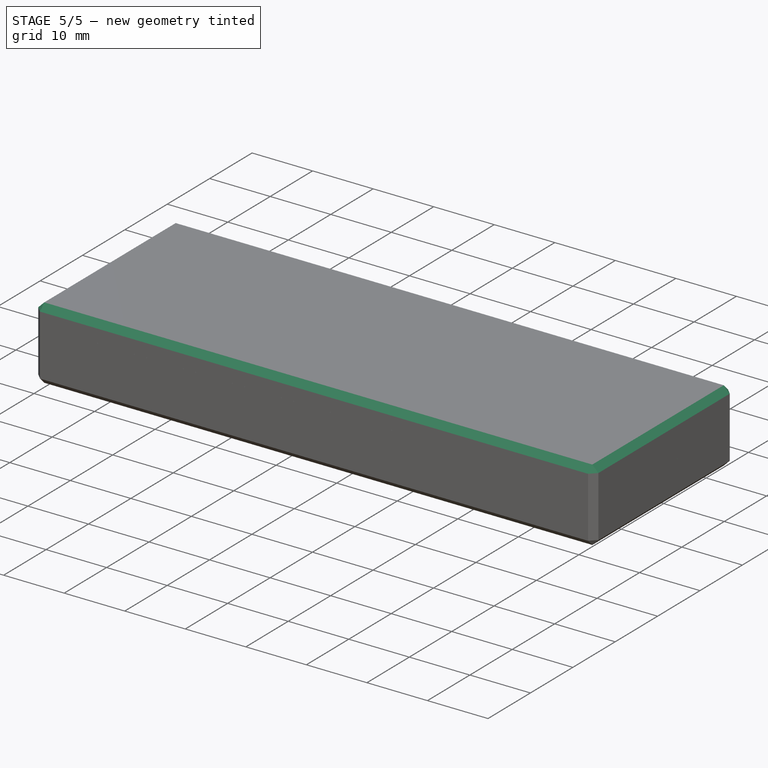
[diagram: stage 5 of 5 — iso view after this stage's code; geometry added in this stage tinted green]
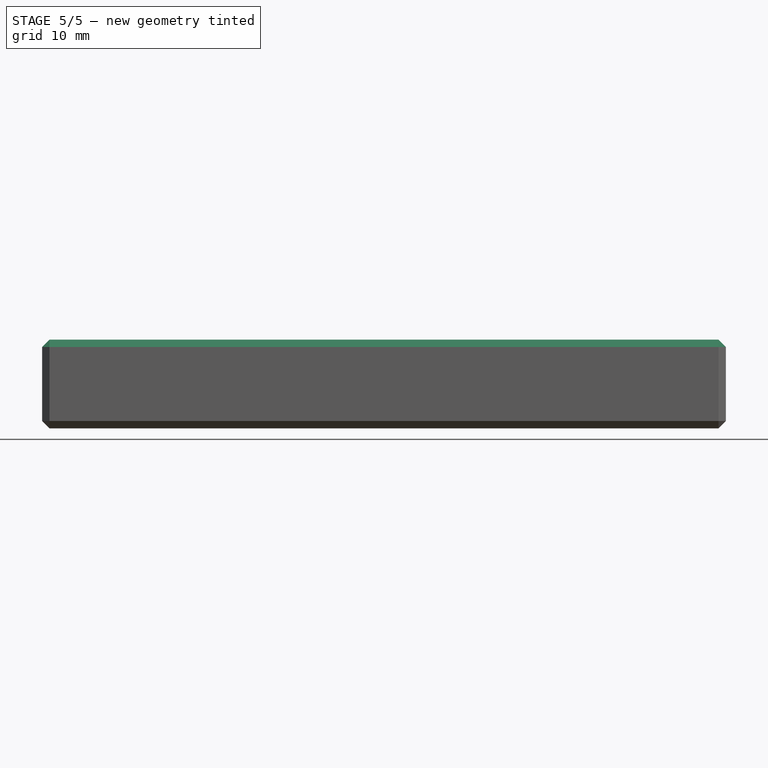
[diagram: stage 5 of 5 — front view after this stage's code; geometry added in this stage tinted green]
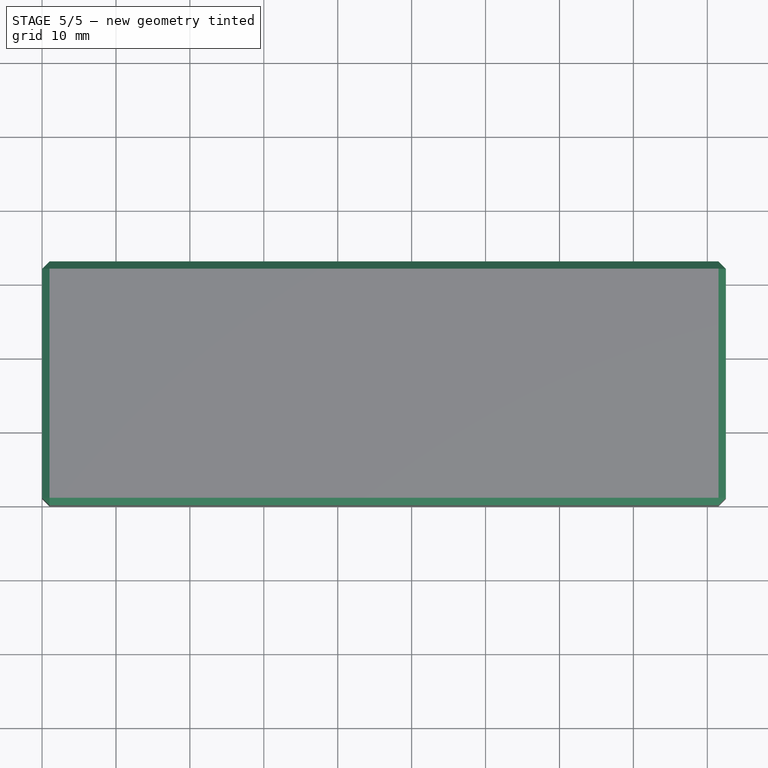
[diagram: stage 5 of 5 — top view after this stage's code; geometry added in this stage tinted green]
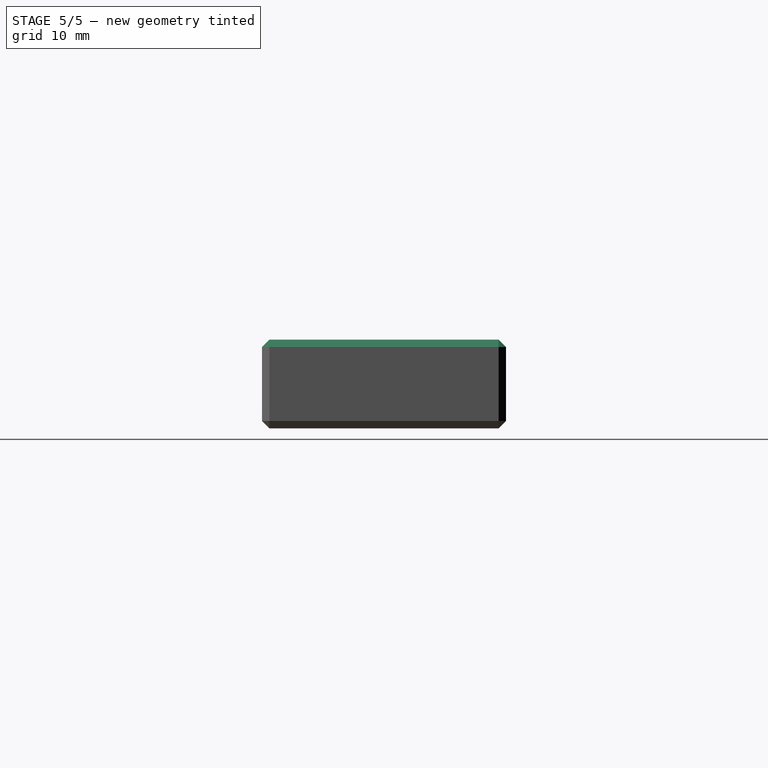
[diagram: stage 5 of 5 — right view after this stage's code; geometry added in this stage tinted green]
FEATURE [PartDesign::Chamfer] Chamfer001
  Angle = 45
  Base = -> Chamfer [Edge299,Edge302,Edge300,Edge298,Edge297,Edge296,Edge301,Edge295]
  BaseFeature = -> Chamfer
  ChamferType = 0
  FlipDirection = false
  Size = 1
  Size2 = 1
  SupportTransform = false
  UseAllEdges = false
FEATURE [PartDesign::Chamfer] Chamfer005
  Angle = 45
  Base = -> Chamfer001 [Edge174,Edge180,Edge187,Edge193]
  BaseFeature = -> Chamfer001
  ChamferType = 0
  FlipDirection = false
  Size = 1
  Size2 = 1
  SupportTransform = false
  UseAllEdges = false
FEATURE [PartDesign::Chamfer] Chamfer006
  Angle = 45
  Base = -> Chamfer005 [Edge33,Edge28,Edge45,Edge47,Edge49,Edge54,Edge37,Edge35,Edge137,Edge168,Edge164,Edge125]
  BaseFeature = -> Chamfer005
  ChamferType = 0
  FlipDirection = false
  Size = 1
  Size2 = 1
  SupportTransform = false
  UseAllEdges = false
FEATURE [Sketcher::SketchObject] Sketch014
  FullyConstrained = true
  MapMode = 5
  Placement = pos=(0,0,0) rot=(0.57735,-0.57735,-0.57735;2.0944rad)
  Support = -> [Chamfer007]
  sketch-geometry (24):
    g0: LineSegment StartX=-22.5 StartY=12.05 StartZ=0 EndX=-10.5 EndY=12.05 EndZ=0
    g1: LineSegment StartX=-9 StartY=10.55 StartZ=0 EndX=-9 EndY=7.55 EndZ=0
    g2: LineSegment StartX=-10.5 StartY=6.05 StartZ=0 EndX=-22.5 EndY=6.05 EndZ=0
    g3: LineSegment StartX=-24 StartY=7.55 StartZ=0 EndX=-24 EndY=10.55 EndZ=0
    g4: LineSegment StartX=-24 StartY=10.55 StartZ=0 EndX=-9 EndY=10.55 EndZ=0
    g5: LineSegment StartX=-10.5 StartY=12.05 StartZ=0 EndX=-10.5 EndY=10.55 EndZ=0
    g6: LineSegment StartX=-22.5 StartY=12.05 StartZ=0 EndX=-22.5 EndY=6.05 EndZ=0
    g7: LineSegment StartX=-10.5 StartY=6.05 StartZ=0 EndX=-10.5 EndY=7.55 EndZ=0
    g8: LineSegment StartX=-10.5 StartY=7.55 StartZ=0 EndX=-9 EndY=7.55 EndZ=0
    g9: LineSegment StartX=-24 StartY=7.55 StartZ=0 EndX=-22.5 EndY=7.55 EndZ=0
    g10: LineSegment StartX=-9 StartY=10.55 StartZ=0 EndX=-10.5 EndY=12.05 EndZ=0
    g11: LineSegment StartX=-22.5 StartY=12.05 StartZ=0 EndX=-24 EndY=10.55 EndZ=0
    g12: LineSegment StartX=-24 StartY=7.55 StartZ=0 EndX=-22.5 EndY=6.05 EndZ=0
    g13: LineSegment StartX=-10.5 StartY=6.05 StartZ=0 EndX=-9 EndY=7.55 EndZ=0
    g14: LineSegment StartX=0 StartY=0 StartZ=0 EndX=-33 EndY=0 EndZ=0
    g15: LineSegment StartX=-33 StartY=0 StartZ=0 EndX=-33 EndY=18.1 EndZ=0
    g16: LineSegment StartX=-33 StartY=18.1 StartZ=0 EndX=0 EndY=18.1 EndZ=0
    g17: LineSegment StartX=0 StartY=18.1 StartZ=0 EndX=0 EndY=0 EndZ=0
    g18: GeomPoint X=-16.5 Y=18.1 Z=0
    g19: GeomPoint X=-33 Y=9.05 Z=0
    g20: LineSegment StartX=-33 StartY=9.05 StartZ=0 EndX=0 EndY=9.05 EndZ=0
    g21: LineSegment StartX=-16.5 StartY=18.1 StartZ=0 EndX=-16.5 EndY=0 EndZ=0
    g22: GeomPoint X=-16.5 Y=12.05 Z=0
    g23: GeomPoint X=-24 Y=9.05 Z=0
  constraints (60):
    c: Horizontal(g0)
    c: Horizontal(g2)
    c: Vertical(g1)
    c: Vertical(g3)
    c: Coincident(g4,g3)
    c: Coincident(g4,g1)
    c: Horizontal(g4)
    c: Coincident(g5,g0)
    c: PointOnObject(g5,g4)
    c: Vertical(g5)
    c: Coincident(g6,g0)
    c: Coincident(g6,g2)
    c: Coincident(g7,g2)
    c: Vertical(g7)
    c: Coincident(g8,g7)
    c: Coincident(g8,g1)
    c: Coincident(g9,g3)
    c: PointOnObject(g9,g6)
    c: Horizontal(g9)
    c: Vertical(g6)
    c: Equal(g5,g7)
    c: Equal(g7,g8)
    c: Equal(g8,g9)
    c: Horizontal(g8)
    c: Equal(g0,g2)
    c: Equal(g3,g1)
    c: Coincident(g10,g1)
    c: Coincident(g10,g0)
    c: Coincident(g11,g0)
    c: Coincident(g11,g3)
    c: Coincident(g12,g3)
    c: Coincident(g12,g2)
    c: Coincident(g13,g2)
    c: Coincident(g13,g1)
    c: DistanceY(g2,g0) = 6
    c: DistanceY(g1,g1) = 3
    c: DistanceX(g3,g1) = 15
    c: Coincident(g14,g15)
    c: Coincident(g15,g16)
    c: Coincident(g16,g17)
    c: Coincident(g17,g14)
    c: Horizontal(g14)
    c: Horizontal(g16)
    c: Vertical(g15)
    c: Vertical(g17)
    c: Coincident(g14,g-1)
    c: DistanceX(g16,g16) = 33
    c: DistanceY(g15,g15) = 18.1
    c: Symmetric(g15,g16,g18)
    c: Symmetric(g15,g14,g19)
    c: Coincident(g20,g19)
    c: PointOnObject(g20,g17)
    c: Horizontal(g20)
    c: Coincident(g21,g18)
    c: PointOnObject(g21,g14)
    c: Vertical(g21)
    c: Symmetric(g0,g0,g22)
    c: Symmetric(g3,g3,g23)
    c: PointOnObject(g22,g21)
    c: PointOnObject(g23,g20)
FEATURE [PartDesign::Pocket] Pocket009
  BaseFeature = -> Chamfer007
  Direction = (1,0,0)
  Length = 5
  Length2 = 5
  Profile = -> Sketch014
  ReferenceAxis = -> Sketch014 [N_Axis]
  Type = 1
FEATURE [PartDesign::Body] Body  label="Body-Bottom"
  Group = -> [Sketch,Pad,Sketch002,Pocket,Sketch003,Pocket001,Sketch004,Pocket002,Chamfer002,Sketch012,Pad002,Chamfer003,Sketch013,Pad003,Chamfer004,Chamfer007,Sketch014,Pocket009]
  Origin = -> Origin001
  Tip = -> Pocket009
FEATURE [Sketcher::SketchObject] Sketch015
  FullyConstrained = true
  MapMode = 5
  Placement = pos=(0,0,0) rot=(0.57735,-0.57735,-0.57735;2.0944rad)
  Support = -> [Chamfer006]
  expr: Constraints[34] = Sketch014.Constraints[34]
  expr: Constraints[35] = Sketch014.Constraints[35]
  expr: Constraints[36] = Sketch014.Constraints[36]
  expr: Constraints[45] = Sketch014.Constraints[46]
  expr: Constraints[46] = Sketch014.Constraints[47]
  sketch-geometry (24):
    g0: LineSegment StartX=-22.5 StartY=5.95 StartZ=0 EndX=-10.5 EndY=5.95 EndZ=0
    g1: LineSegment StartX=-9 StartY=4.45 StartZ=0 EndX=-9 EndY=1.45 EndZ=0
    g2: LineSegment StartX=-10.5 StartY=-0.05 StartZ=0 EndX=-22.5 EndY=-0.05 EndZ=0
    g3: LineSegment StartX=-24 StartY=1.45 StartZ=0 EndX=-24 EndY=4.45 EndZ=0
    g4: LineSegment StartX=-24 StartY=4.45 StartZ=0 EndX=-9 EndY=4.45 EndZ=0
    g5: LineSegment StartX=-10.5 StartY=5.95 StartZ=0 EndX=-10.5 EndY=4.45 EndZ=0
    g6: LineSegment StartX=-22.5 StartY=5.95 StartZ=0 EndX=-22.5 EndY=-0.05 EndZ=0
    g7: LineSegment StartX=-10.5 StartY=-0.05 StartZ=0 EndX=-10.5 EndY=1.45 EndZ=0
    g8: LineSegment StartX=-10.5 StartY=1.45 StartZ=0 EndX=-9 EndY=1.45 EndZ=0
    g9: LineSegment StartX=-24 StartY=1.45 StartZ=0 EndX=-22.5 EndY=1.45 EndZ=0
    g10: LineSegment StartX=-9 StartY=4.45 StartZ=0 EndX=-10.5 EndY=5.95 EndZ=0
    g11: LineSegment StartX=-22.5 StartY=5.95 StartZ=0 EndX=-24 EndY=4.45 EndZ=0
    g12: LineSegment StartX=-24 StartY=1.45 StartZ=0 EndX=-22.5 EndY=-0.05 EndZ=0
    g13: LineSegment StartX=-10.5 StartY=-0.05 StartZ=0 EndX=-9 EndY=1.45 EndZ=0
    g14: LineSegment StartX=0 StartY=-6.1 StartZ=0 EndX=-33 EndY=-6.1 EndZ=0
    g15: LineSegment StartX=-33 StartY=-6.1 StartZ=0 EndX=-33 EndY=12 EndZ=0
    g16: LineSegment StartX=-33 StartY=12 StartZ=0 EndX=0 EndY=12 EndZ=0
    g17: LineSegment StartX=0 StartY=12 StartZ=0 EndX=0 EndY=-6.1 EndZ=0
    g18: GeomPoint X=-16.5 Y=12 Z=0
    g19: GeomPoint X=-33 Y=2.95 Z=0
    g20: LineSegment StartX=-33 StartY=2.95 StartZ=0 EndX=0 EndY=2.95 EndZ=0
    g21: LineSegment StartX=-16.5 StartY=12 StartZ=0 EndX=-16.5 EndY=-6.1 EndZ=0
    g22: GeomPoint X=-16.5 Y=5.95 Z=0
    g23: GeomPoint X=-24 Y=2.95 Z=0
  constraints (61):
    c: Horizontal(g0)
    c: Horizontal(g2)
    c: Vertical(g1)
    c: Vertical(g3)
    c: Coincident(g4,g3)
    c: Coincident(g4,g1)
    c: Horizontal(g4)
    c: Coincident(g5,g0)
    c: PointOnObject(g5,g4)
    c: Vertical(g5)
    c: Coincident(g6,g0)
    c: Coincident(g6,g2)
    c: Coincident(g7,g2)
    c: Vertical(g7)
    c: Coincident(g8,g7)
    c: Coincident(g8,g1)
    c: Coincident(g9,g3)
    c: PointOnObject(g9,g6)
    c: Horizontal(g9)
    c: Vertical(g6)
    c: Equal(g5,g7)
    c: Equal(g7,g8)
    c: Equal(g8,g9)
    c: Horizontal(g8)
    c: Equal(g0,g2)
    c: Equal(g3,g1)
    c: Coincident(g10,g1)
    c: Coincident(g10,g0)
    c: Coincident(g11,g0)
    c: Coincident(g11,g3)
    c: Coincident(g12,g3)
    c: Coincident(g12,g2)
    c: Coincident(g13,g2)
    c: Coincident(g13,g1)
    c: DistanceY(g2,g0) = 6
    c: DistanceY(g1,g1) = 3
    c: DistanceX(g3,g1) = 15
    c: Coincident(g14,g15)
    c: Coincident(g15,g16)
    c: Coincident(g16,g17)
    c: Coincident(g17,g14)
    c: Horizontal(g14)
    c: Horizontal(g16)
    c: Vertical(g15)
    c: Vertical(g17)
    c: DistanceX(g16,g16) = 33
    c: DistanceY(g15,g15) = 18.1
    c: Symmetric(g15,g16,g18)
    c: Symmetric(g15,g14,g19)
    c: Coincident(g20,g19)
    c: PointOnObject(g20,g17)
    c: Horizontal(g20)
    c: Coincident(g21,g18)
    c: PointOnObject(g21,g14)
    c: Vertical(g21)
    c: Symmetric(g0,g0,g22)
    c: Symmetric(g3,g3,g23)
    c: PointOnObject(g22,g21)
    c: PointOnObject(g23,g20)
    c: PointOnObject(g14,g-2)
    c: DistanceY(g14,g-1) = 6.1
FEATURE [PartDesign::Pocket] Pocket010
  BaseFeature = -> Chamfer006
  Direction = (1,0,0)
  Length = 5
  Length2 = 5
  Profile = -> Sketch015
  ReferenceAxis = -> Sketch015 [N_Axis]
  Type = 1
FEATURE [PartDesign::Body] Body001  label="Body-Top"
  Group = -> [Sketch005,Pad001,Sketch006,Pocket003,Sketch007,Pocket004,Sketch008,Pocket005,Sketch009,Pocket006,Sketch010,Pocket007,Sketch011,Pocket008,Chamfer,Chamfer001,Chamfer005,Chamfer006,Sketch015,Pocket010]
  Origin = -> Origin002
  Placement = pos=(0,0,6.1) rot=(0,0,1;0rad)
  Tip = -> Pocket010
FEATURE [App::Part] Part  label="Mazda3 IC MITM Case"
  Group = -> [Sketch001,Body,Body001]
  Origin = -> Origin
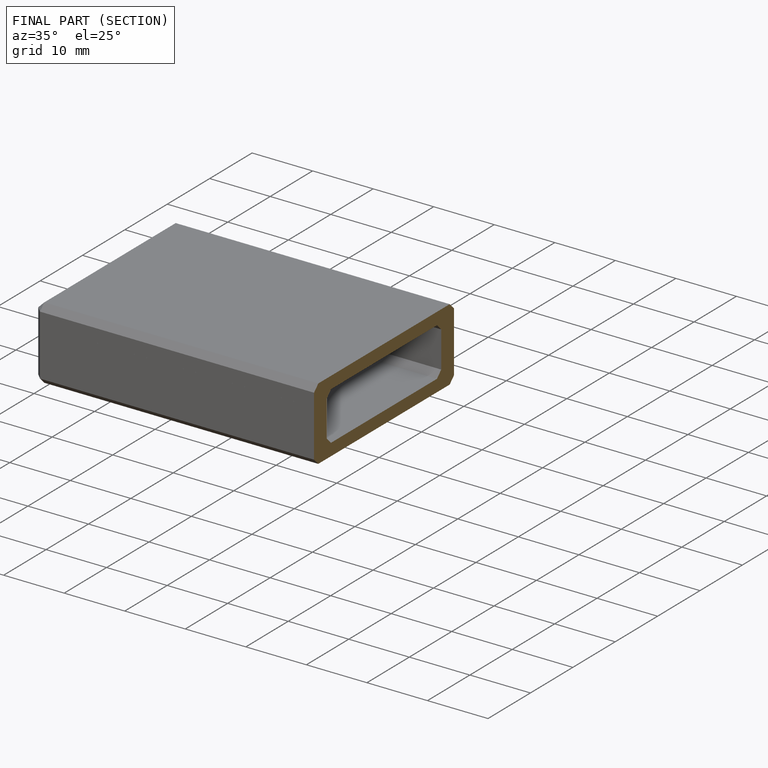
[diagram: finished part — half-section view (interior)]
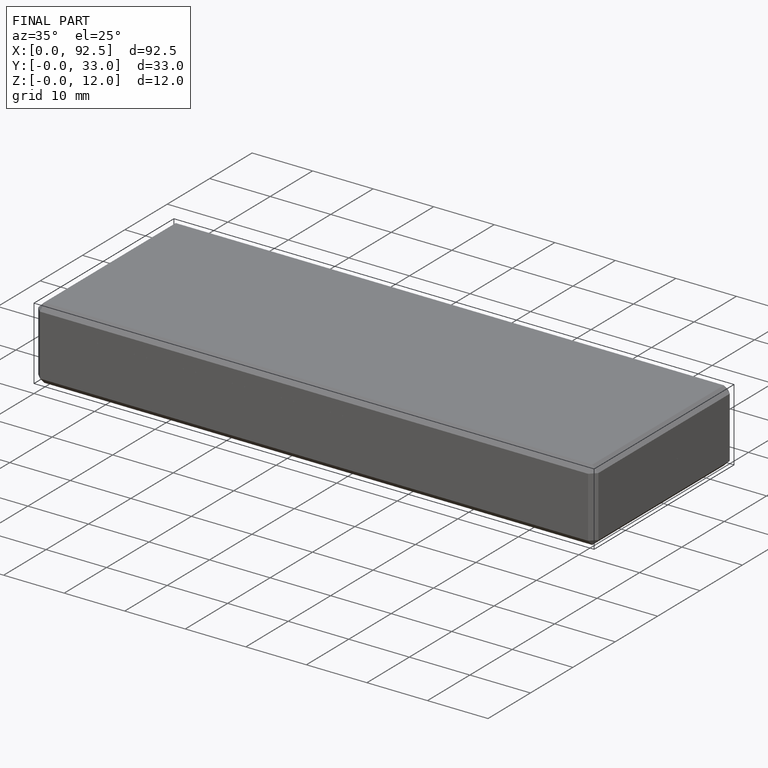
[diagram: finished part — iso view with bounding-box wireframe]
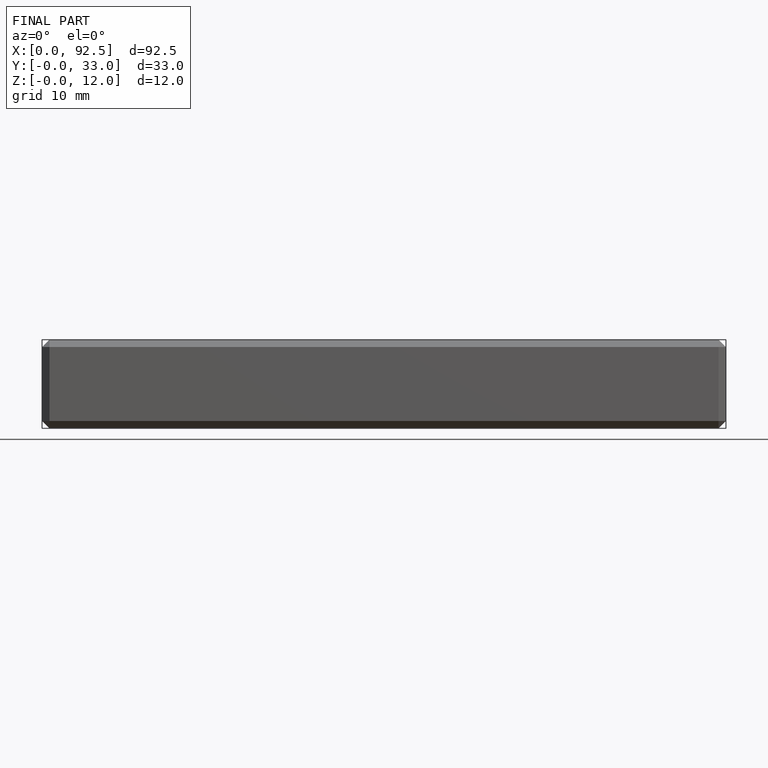
[diagram: finished part — front view with bounding-box wireframe]
